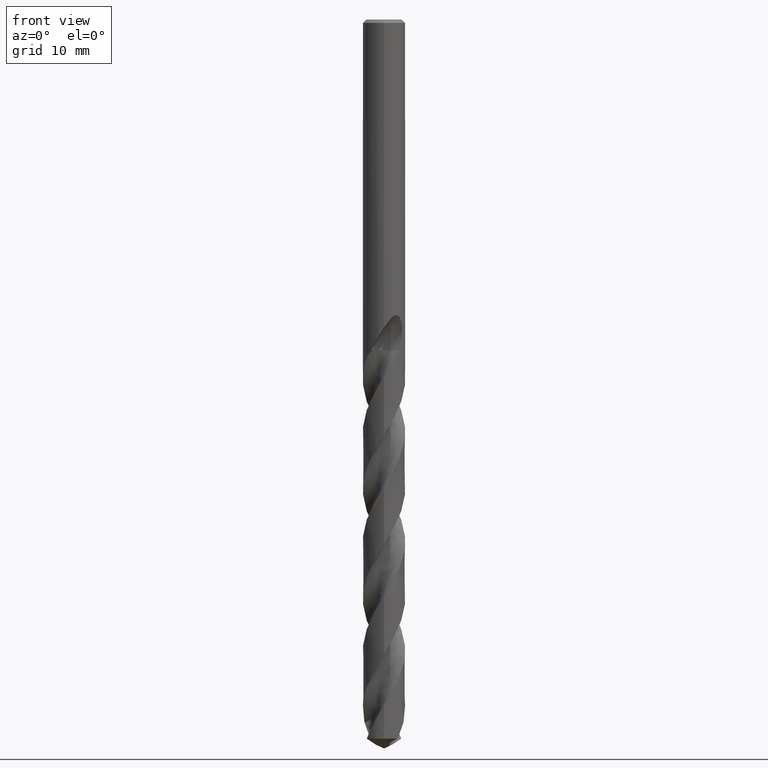
[diagram: clean part render]
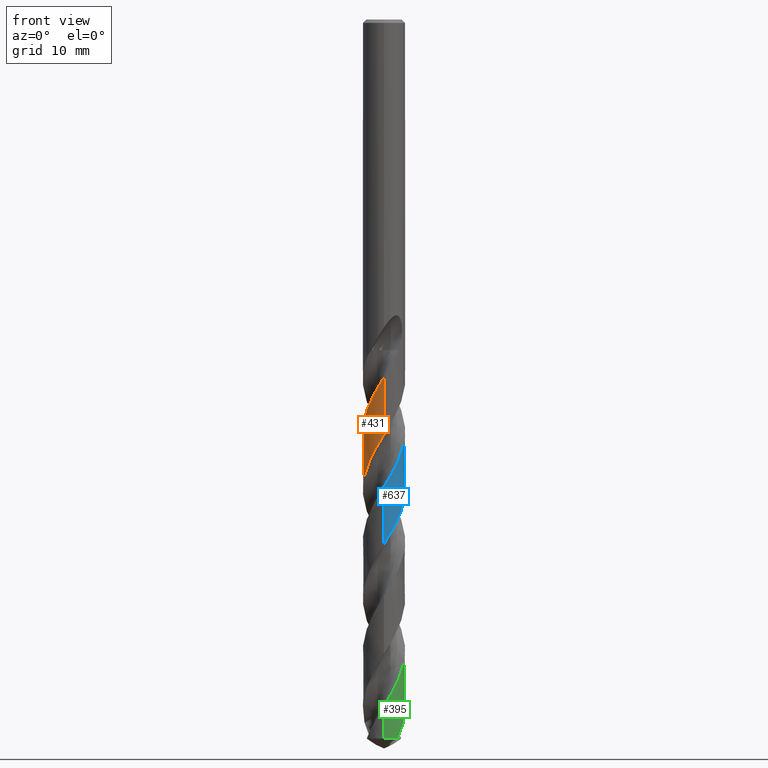
[diagram: same view with three faces highlighted in distinct colors, each labeled with its STEP entity id]
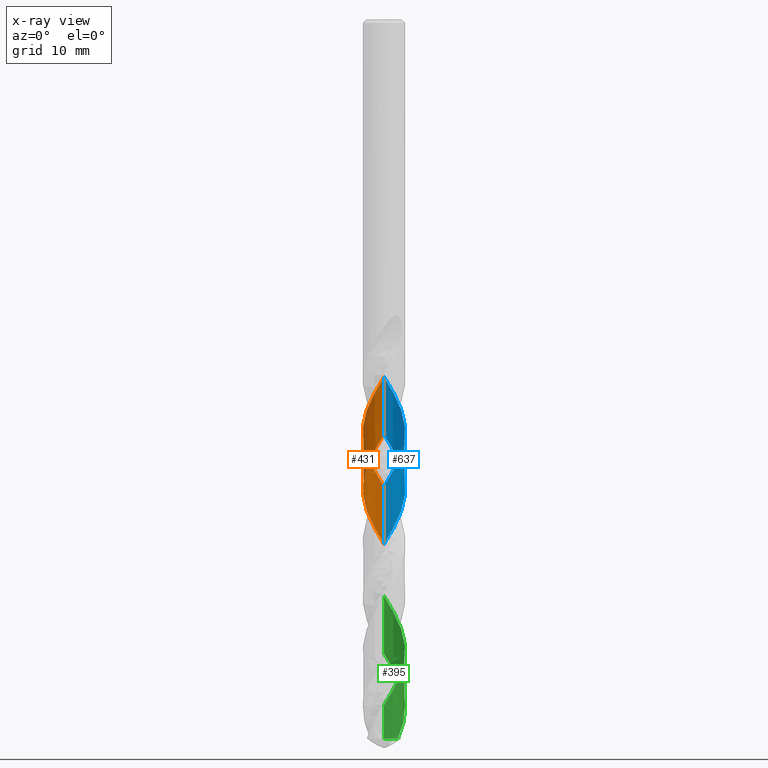
[diagram: x-ray of the same camera — body ghosted, the three highlighted faces saturated]
A machine part, front view with three faces highlighted in distinct colors.
The next image is the same camera in x-ray (body ghosted, the three faces saturated) — at least one of them is partly hidden behind the body in this view.
Their STEP definitions:

[orange] entity #431 — the highlighted conical surface has half-angle 0 deg.
#337=EDGE_CURVE('',#709,#527,#839,.T.);
#431=ADVANCED_FACE('',(#943),#944,.T.);
#479=EDGE_CURVE('',#527,#519,#998,.T.);
#519=VERTEX_POINT('',#1041);
#527=VERTEX_POINT('',#1049);
#621=EDGE_CURVE('',#633,#709,#1152,.T.);
#633=VERTEX_POINT('',#1165);
#709=VERTEX_POINT('',#1247);
#735=EDGE_CURVE('',#519,#633,#1275,.T.);
#839=B_SPLINE_CURVE_WITH_KNOTS('',3,(#2713,#2714,#2715,#2716,#2717,#2718,#2719,#2720,#2721,#2722,#2723,#2724,#2725,#2726,#2727,#2728,#2729,#2730,#2731,#2732,#2733,#2734,#2735,#2736,#2737,#2738,#2739,#2740,#2741,#2742,#2743,#2744,#2745,#2746,#2747,#2748,#2749,#2750,#2751,#2752,#2753,#2754,#2755,#2756,#2757,#2758,#2759,#2760,#2761,#2762,#2763,#2764,#2765,#2766,#2767,#2768,#2769,#2770,#2771,#2772,#2773,#2774,#2775,#2776,#2777,#2778,#2779,#2780,#2781,#2782,#2783,#2784,#2785,#2786,#2787,#2788,#2789,#2790,#2791,#2792,#2793,#2794,#2795,#2796,#2797,#2798,#2799,#2800,#2801,#2802,#2803,#2804,#2805,#2806,#2807,#2808,#2809,#2810,#2811,#2812,#2813,#2814,#2815,#2816,#2817,#2818,#2819,#2820,#2821,#2822,#2823,#2824,#2825,#2826,#2827,#2828,#2829,#2830,#2831,#2832,#2833,#2834,#2835,#2836,#2837,#2838,#2839,#2840,#2841,#2842,#2843,#2844,#2845,#2846,#2847,#2848,#2849,#2850,#2851,#2852,#2853,#2854,#2855,#2856,#2857,#2858,#2859,#2860,#2861,#2862,#2863,#2864),.UNSPECIFIED.,.F.,.F.,(4,2,2,2,2,2,2,2,2,2,2,2,2,2,2,2,2,2,2,2,2,2,2,2,2,2,2,2,2,2,2,2,2,2,2,2,2,2,2,2,2,2,2,2,2,2,2,2,2,2,2,2,2,2,2,2,2,2,2,2,2,2,2,2,2,2,2,2,2,2,2,2,2,2,2,4),(0.0,0.843083054638902,1.66804286657641,2.51310423940939,3.36250952221617,3.57473579094262,4.20621494976828,5.0525712826218,5.8978571349749,6.74385602508176,7.59183024873206,8.39977147456025,9.27828082982898,10.0859241058606,10.9794898650953,11.70412571583,12.1541521877217,12.8041614260335,13.6523683667618,14.4999247276601,15.3475843639569,16.1976753466537,16.9990964033029,17.8544970287512,19.2432046717288,19.3449379990912,20.1974135772461,20.6288419063677,21.4504111602038,22.3012801259191,23.149091867137,24.037501226588,24.9226112893588,25.8135300813571,26.6289010674702,27.4804265663469,28.3291974930779,29.1801095271964,30.0315289585334,30.8657588302019,31.7588635651947,32.5902035515715,33.484200048639,34.3068304630442,35.164152534063,35.9034489644532,36.3361763551521,36.9909870583652,37.8439098675173,38.6961846119663,39.5485741243822,40.403405385222,41.2114476260207,42.0714499378239,43.4738025513434,43.5735670078129,45.2229303149307,45.2884315362778,46.236365421632,46.6698779453753,47.4038655321789,48.1120624154248,49.4758027034848,49.9857161280815,50.8773361897484,52.1588135294673,52.4571576783106,52.8065841090327,53.0051249137027,53.1100647107522,53.1494684978502,53.1879739384339,53.2419326191836,53.3741587339091,53.566967698482,53.7365182293581),.UNSPECIFIED.);
#943=FACE_OUTER_BOUND('',#4662,.T.);
#944=CONICAL_SURFACE('',#4663,2.49995,2.18177545767606E-006);
#998=LINE('',#5174,#5175);
#1041=CARTESIAN_POINT('',(-2.95548719547398E-011,-2.49990692057488,-42.1719922679933));
#1049=CARTESIAN_POINT('',(4.14994299950938E-015,-2.49992177036322,-48.978278534679));
#1152=LINE('',#6170,#6171);
#1165=CARTESIAN_POINT('',(-3.84068124629203E-013,2.49993510164427,-55.0885686660213));
#1247=CARTESIAN_POINT('',(5.39811150002052E-015,2.49994995181934,-61.8950321944106));
#1275=B_SPLINE_CURVE_WITH_KNOTS('',3,(#8434,#8435,#8436,#8437,#8438,#8439,#8440,#8441,#8442,#8443,#8444,#8445,#8446,#8447,#8448,#8449,#8450,#8451,#8452,#8453,#8454,#8455,#8456,#8457,#8458,#8459,#8460,#8461,#8462,#8463,#8464,#8465,#8466,#8467,#8468,#8469,#8470,#8471,#8472,#8473,#8474,#8475,#8476,#8477,#8478,#8479,#8480,#8481,#8482,#8483,#8484,#8485,#8486,#8487,#8488,#8489,#8490,#8491,#8492,#8493,#8494,#8495,#8496,#8497,#8498,#8499,#8500,#8501,#8502,#8503,#8504,#8505,#8506,#8507,#8508,#8509,#8510,#8511,#8512,#8513,#8514,#8515,#8516,#8517,#8518,#8519,#8520,#8521,#8522,#8523,#8524,#8525,#8526,#8527,#8528,#8529,#8530,#8531,#8532,#8533,#8534,#8535,#8536,#8537,#8538,#8539,#8540,#8541,#8542,#8543,#8544,#8545,#8546,#8547,#8548,#8549,#8550,#8551,#8552,#8553,#8554,#8555,#8556,#8557,#8558,#8559,#8560,#8561,#8562,#8563,#8564,#8565,#8566,#8567,#8568,#8569,#8570,#8571,#8572,#8573,#8574,#8575,#8576,#8577,#8578,#8579,#8580,#8581,#8582,#8583,#8584,#8585,#8586,#8587,#8588,#8589,#8590,#8591,#8592,#8593,#8594,#8595,#8596,#8597,#8598,#8599,#8600,#8601,#8602,#8603,#8604,#8605,#8606,#8607,#8608,#8609,#8610,#8611,#8612,#8613,#8614,#8615,#8616,#8617,#8618,#8619),.UNSPECIFIED.,.F.,.F.,(4,2,2,2,2,2,2,2,2,2,2,2,2,2,2,2,2,2,2,2,2,2,2,2,2,2,2,2,2,2,2,2,2,2,2,2,2,2,2,2,2,2,2,2,2,2,2,2,2,2,2,2,2,2,2,2,2,2,2,2,2,2,2,2,2,2,2,2,2,2,2,2,2,2,2,2,2,2,2,2,2,2,2,2,2,2,2,2,2,2,2,2,4),(0.0,0.130197631691934,0.177790375154631,0.20352837875392,0.220477773174273,0.234485518691503,0.245967376914875,0.255309320033064,0.262862451433,0.268940527064288,0.273826369758257,0.277656987587669,0.28040462122601,0.282358492650839,0.283748031980026,0.558711843630576,0.62011222371354,0.66020049941823,0.692524605453398,0.729355090980869,0.792330234612566,0.833643482365751,0.901367118097999,1.15381635228199,1.40619876288596,1.58774940205914,1.67380141968575,1.85338322812626,2.29506270661106,4.13542105061356,5.00461126079501,5.17159259565805,6.53687756468259,6.93574310306155,7.68923974127355,8.12938232876279,8.5744064516874,9.98271598118927,10.3378960322548,11.1530445807223,11.5705488553828,11.9659135057265,13.4464712373786,13.4866936811887,14.69772421416,15.8444731832757,16.714434277566,16.8888541614119,18.1691452072515,19.0060888019089,19.8094675001382,20.6980458993568,21.5468583329051,21.9952297836868,23.406971863391,23.7585636740439,24.5787034695598,25.0165159198198,25.3966326474268,26.1676807432539,26.5856740651357,27.0259636646815,28.4423117199704,28.6178453861175,29.887606128225,30.8312605479075,31.6524604633438,32.0679552541681,33.5129706621341,33.6804597592663,35.0087108347904,35.4210594423622,36.8693705947139,36.9529259546718,38.1601294823307,39.3100676834008,40.1785708203634,40.3520111471677,41.6344169593832,42.094239637959,43.4947797878177,43.8509767470389,44.6579477207934,45.0744736150211,45.4741344429667,46.9419238798095,46.9825987660621,48.1656603916745,49.1883459185273,49.9640468392,50.5485074317741,51.4282284075704,52.3131001026529),.UNSPECIFIED.);
#2713=CARTESIAN_POINT('',(-1.61904416076534,1.9049136477782,-84.8342308546125));
#2714=CARTESIAN_POINT('',(-1.73030245048948,1.81035114924859,-84.5941140361506));
#2715=CARTESIAN_POINT('',(-1.83285812364687,1.70643502484931,-84.3523628425534));
#2716=CARTESIAN_POINT('',(-2.01694541256704,1.48401810570645,-83.8771588573506));
#2717=CARTESIAN_POINT('',(-2.09844005231934,1.36637078175123,-83.6435267278447));
#2718=CARTESIAN_POINT('',(-2.24223578281594,1.11525833942451,-83.1680450574665));
#2719=CARTESIAN_POINT('',(-2.30364667208482,0.982153947810092,-82.926498494044));
#2720=CARTESIAN_POINT('',(-2.40279534109374,0.705836091355642,-82.4440535319063));
#2721=CARTESIAN_POINT('',(-2.44016675337095,0.563215823820068,-82.2035854338965));
#2722=CARTESIAN_POINT('',(-2.47092775821712,0.38188458335885,-81.9013657760394));
#2723=CARTESIAN_POINT('',(-2.47627126519853,0.345535898857718,-81.8409538259136));
#2724=CARTESIAN_POINT('',(-2.4943121719894,0.200743870630057,-81.6006164399236));
#2725=CARTESIAN_POINT('',(-2.50071407449235,0.0915018902334625,-81.4199131088757));
#2726=CARTESIAN_POINT('',(-2.49887374981121,-0.16464990555372,-80.9986717059998));
#2727=CARTESIAN_POINT('',(-2.48491029320295,-0.311008745782048,-80.7588451766232));
#2728=CARTESIAN_POINT('',(-2.43146650675097,-0.59951354861451,-80.2768715720761));
#2729=CARTESIAN_POINT('',(-2.39217949408288,-0.740853995146749,-80.0349574193276));
#2730=CARTESIAN_POINT('',(-2.28929284418535,-1.01516332526188,-79.5530813389774));
#2731=CARTESIAN_POINT('',(-2.22584375494678,-1.14763909978102,-79.3134486132993));
#2732=CARTESIAN_POINT('',(-2.07618475171659,-1.40036000131957,-78.8310691637181));
#2733=CARTESIAN_POINT('',(-1.99036771871385,-1.51983914447561,-78.588533935986));
#2734=CARTESIAN_POINT('',(-1.80336668681012,-1.73705269492233,-78.1169892513679));
#2735=CARTESIAN_POINT('',(-1.70333743422637,-1.83525984627696,-77.8881531586018));
#2736=CARTESIAN_POINT('',(-1.47828803533214,-2.02182395238271,-77.4082574275265));
#2737=CARTESIAN_POINT('',(-1.35259123307695,-2.10795815705749,-77.1572310045832));
#2738=CARTESIAN_POINT('',(-1.0981125261393,-2.25023593837381,-76.6774093570044));
#2739=CARTESIAN_POINT('',(-0.97062539408151,-2.30810908220714,-76.4488177316941));
#2740=CARTESIAN_POINT('',(-0.693020451042249,-2.40698662992373,-75.9651304596905));
#2741=CARTESIAN_POINT('',(-0.542904371539681,-2.44519458044319,-75.7100770532001));
#2742=CARTESIAN_POINT('',(-0.26683020752651,-2.48884768927043,-75.2499859275215));
#2743=CARTESIAN_POINT('',(-0.141778061734029,-2.49910575910554,-75.0448607245617));
#2744=CARTESIAN_POINT('',(0.0615749082536149,-2.50043352911697,-74.7112109707396));
#2745=CARTESIAN_POINT('',(0.139363901202381,-2.49729948474765,-74.583545042677));
#2746=CARTESIAN_POINT('',(0.328600999998196,-2.48082739658658,-74.270796852484));
#2747=CARTESIAN_POINT('',(0.439679271707452,-2.46357560366053,-74.0851852269267));
#2748=CARTESIAN_POINT('',(0.692480264582732,-2.40663092380166,-73.6590514114439));
#2749=CARTESIAN_POINT('',(0.832524417716884,-2.36184897511326,-73.4192066326005));
#2750=CARTESIAN_POINT('',(1.10313463218582,-2.24821777481941,-72.9370961990108));
#2751=CARTESIAN_POINT('',(1.23294784022147,-2.17971739408404,-72.6950548585672));
#2752=CARTESIAN_POINT('',(1.47910617013291,-2.0207852941405,-72.2130964248914));
#2753=CARTESIAN_POINT('',(1.59502062454969,-1.93061581807798,-71.9735120292661));
#2754=CARTESIAN_POINT('',(1.81012492314567,-1.73058784604798,-71.4911062929622));
#2755=CARTESIAN_POINT('',(1.90863487692411,-1.62127069557093,-71.248495559264));
#2756=CARTESIAN_POINT('',(2.08022417426271,-1.39343842230922,-70.7792262313213));
#2757=CARTESIAN_POINT('',(2.15422318487272,-1.27608056994084,-70.5527067255508));
#2758=CARTESIAN_POINT('',(2.28640130922515,-1.02181147127716,-70.0822799818975));
#2759=CARTESIAN_POINT('',(2.34275473876187,-0.884926485191384,-69.8384483404955));
#2760=CARTESIAN_POINT('',(2.45793582158303,-0.515487504847443,-69.2013199327216));
#2761=CARTESIAN_POINT('',(2.49591011258483,-0.278055587927695,-68.8128425207468));
#2762=CARTESIAN_POINT('',(2.499930989591,-0.0217223641545861,-68.3895151217758));
#2763=CARTESIAN_POINT('',(2.50002175396793,-0.00424837775075665,-68.3606285495612));
#2764=CARTESIAN_POINT('',(2.49915019924383,0.159964767496961,-68.0894699416692));
#2765=CARTESIAN_POINT('',(2.48546049502866,0.306629436197261,-67.8486557812975));
#2766=CARTESIAN_POINT('',(2.44536437244894,0.524944829367527,-67.484526824171));
#2767=CARTESIAN_POINT('',(2.4286241101351,0.597613311246589,-67.3623254604227));
#2768=CARTESIAN_POINT('',(2.37070458025325,0.80602850984963,-67.0067764584283));
#2769=CARTESIAN_POINT('',(2.32122246776111,0.939060250652559,-66.7726143906741));
#2770=CARTESIAN_POINT('',(2.19799538430979,1.20007441098044,-66.2980436474902));
#2771=CARTESIAN_POINT('',(2.12371584788076,1.32710549047304,-66.058008703047));
#2772=CARTESIAN_POINT('',(1.95396428366383,1.56628269768317,-65.5761555837299));
#2773=CARTESIAN_POINT('',(1.85903937146143,1.6778392418689,-65.3345800072696));
#2774=CARTESIAN_POINT('',(1.64575197011054,1.88805827091301,-64.8420752481627));
#2775=CARTESIAN_POINT('',(1.52693662358572,1.98538408590421,-64.5916649037517));
#2776=CARTESIAN_POINT('',(1.27335770575677,2.15677208387363,-64.0887836839792));
#2777=CARTESIAN_POINT('',(1.13937866480618,2.23044735107211,-63.8366731064856));
#2778=CARTESIAN_POINT('',(0.858581891928742,2.35291684999655,-63.3330724789955));
#2779=CARTESIAN_POINT('',(0.71237527076837,2.40122792160595,-63.0820490343108));
#2780=CARTESIAN_POINT('',(0.425635870825854,2.4674619134205,-62.5983021714177));
#2781=CARTESIAN_POINT('',(0.286337834313165,2.48747501343491,-62.366114883144));
#2782=CARTESIAN_POINT('',(-0.000591860060096094,2.50425789139857,-61.8935342815508));
#2783=CARTESIAN_POINT('',(-0.14766219961626,2.49990417220757,-61.6535266104694));
#2784=CARTESIAN_POINT('',(-0.438946053354627,2.46546278084147,-61.171647202568));
#2785=CARTESIAN_POINT('',(-0.582375298553907,2.43556400404885,-60.9300158030611));
#2786=CARTESIAN_POINT('',(-0.862780753685874,2.35092432765367,-60.4483074220251));
#2787=CARTESIAN_POINT('',(-0.999205235204347,2.29627003413885,-60.2085586219782));
#2788=CARTESIAN_POINT('',(-1.26108383185074,2.16355151811865,-59.7263341120705));
#2789=CARTESIAN_POINT('',(-1.38578311146573,2.08586312363154,-59.4840767003682));
#2790=CARTESIAN_POINT('',(-1.61774076048055,1.91135297513945,-59.0065741664307));
#2791=CARTESIAN_POINT('',(-1.72493910908412,1.81520989903585,-58.7715906624558));
#2792=CARTESIAN_POINT('',(-1.92867812230151,1.59800504374051,-58.2825898797425));
#2793=CARTESIAN_POINT('',(-2.02328026032296,1.47637024982219,-58.0286466832588));
#2794=CARTESIAN_POINT('',(-2.18317198864898,1.22634914997775,-57.5404355260836));
#2795=CARTESIAN_POINT('',(-2.24980728901631,1.09935754489893,-57.3063910415296));
#2796=CARTESIAN_POINT('',(-2.36483379512379,0.825218356240182,-56.8182431711396));
#2797=CARTESIAN_POINT('',(-2.41110395389335,0.678167063316389,-56.5642015511659));
#2798=CARTESIAN_POINT('',(-2.47344459644849,0.389583822936428,-56.0784893706862));
#2799=CARTESIAN_POINT('',(-2.4915439791248,0.248923616401569,-55.8470069211967));
#2800=CARTESIAN_POINT('',(-2.50397037978552,-0.040125233626511,-55.3719950769796));
#2801=CARTESIAN_POINT('',(-2.49722574289397,-0.187688634145946,-55.1285774002125));
#2802=CARTESIAN_POINT('',(-2.46062245982718,-0.45949462860944,-54.677141770547));
#2803=CARTESIAN_POINT('',(-2.43409213820059,-0.584005096307821,-54.4690523504952));
#2804=CARTESIAN_POINT('',(-2.3771040712038,-0.777554355239642,-54.1379884864387));
#2805=CARTESIAN_POINT('',(-2.35290587832057,-0.847950141189766,-54.0158907032877));
#2806=CARTESIAN_POINT('',(-2.28439675124643,-1.02168277241147,-53.708406912995));
#2807=CARTESIAN_POINT('',(-2.23612661284262,-1.12342390162272,-53.5224593546359));
#2808=CARTESIAN_POINT('',(-2.10939359474048,-1.34967934549152,-53.0959944164245));
#2809=CARTESIAN_POINT('',(-2.02655581526518,-1.47114698188294,-52.8561522401026));
#2810=CARTESIAN_POINT('',(-1.84051269829731,-1.69813925406976,-52.3740458238015));
#2811=CARTESIAN_POINT('',(-1.73785589977916,-1.80304197393802,-52.1320062399833));
#2812=CARTESIAN_POINT('',(-1.51535660147458,-1.99368964012812,-51.6500469919517));
#2813=CARTESIAN_POINT('',(-1.39588866439931,-2.0790956815578,-51.4104603342242));
#2814=CARTESIAN_POINT('',(-1.14284744946424,-2.22826431662257,-50.9280517234065));
#2815=CARTESIAN_POINT('',(-1.00998652183057,-2.29152984263658,-50.6854413016916));
#2816=CARTESIAN_POINT('',(-0.742348439119781,-2.39119227490734,-50.2155613984915));
#2817=CARTESIAN_POINT('',(-0.608400721342672,-2.42874158141669,-49.9884414015396));
#2818=CARTESIAN_POINT('',(-0.326648635945023,-2.48290089428124,-49.517448757492));
#2819=CARTESIAN_POINT('',(-0.179404602769916,-2.4978344479166,-49.27365545625));
#2820=CARTESIAN_POINT('',(0.208534829191451,-2.50278913620691,-48.6348977346239));
#2821=CARTESIAN_POINT('',(0.447917860191187,-2.47113316913466,-48.2448220177735));
#2822=CARTESIAN_POINT('',(0.695181210113231,-2.40137678569141,-47.8205158323327));
#2823=CARTESIAN_POINT('',(0.71153966994465,-2.39658076153987,-47.7923365959638));
#2824=CARTESIAN_POINT('',(0.998217906634834,-2.30932837857024,-47.2975478025832));
#2825=CARTESIAN_POINT('',(1.25240467055248,-2.18191228811725,-46.8407382651516));
#2826=CARTESIAN_POINT('',(1.48893047849104,-2.00818125110026,-46.3559812673173));
#2827=CARTESIAN_POINT('',(1.49790641953692,-2.0014949786094,-46.3374795783907));
#2828=CARTESIAN_POINT('',(1.63634040544424,-1.89691906070151,-46.0509003583003));
#2829=CARTESIAN_POINT('',(1.7562801853737,-1.7865162574068,-45.7847729356497));
#2830=CARTESIAN_POINT('',(1.91452974939334,-1.609256355639,-45.3949614681343));
#2831=CARTESIAN_POINT('',(1.96162912948107,-1.55148919504226,-45.2727826198));
#2832=CARTESIAN_POINT('',(2.08123427460939,-1.39065001153679,-44.9431093075507));
#2833=CARTESIAN_POINT('',(2.14861166535743,-1.28409992328642,-44.7349916814436));
#2834=CARTESIAN_POINT('',(2.26477911540234,-1.06541977658218,-44.3277294455708));
#2835=CARTESIAN_POINT('',(2.31395088964561,-0.953946760260867,-44.1285452549173));
#2836=CARTESIAN_POINT('',(2.43354576332696,-0.61837349209408,-43.5438203722177));
#2837=CARTESIAN_POINT('',(2.48079967475279,-0.3875649772515,-43.1578797863666));
#2838=CARTESIAN_POINT('',(2.50057849672728,-0.0658796611811111,-42.6292237961722));
#2839=CARTESIAN_POINT('',(2.50134721771636,0.0218442688075326,-42.4856403006997));
#2840=CARTESIAN_POINT('',(2.49080941837004,0.262439961879086,-42.0900498253148));
#2841=CARTESIAN_POINT('',(2.47007431088189,0.414292688459246,-41.8370630213766));
#2842=CARTESIAN_POINT('',(2.38611773564585,0.777335652868665,-41.2237364500792));
#2843=CARTESIAN_POINT('',(2.30845707198406,0.984614900919968,-40.8655061828281));
#2844=CARTESIAN_POINT('',(2.17979115165506,1.22502147156245,-40.4210179153849));
#2845=CARTESIAN_POINT('',(2.15414104078729,1.26958021156559,-40.336710163907));
#2846=CARTESIAN_POINT('',(2.09550034651407,1.36455718929331,-40.1497356874433));
#2847=CARTESIAN_POINT('',(2.06263280878416,1.4136531413964,-40.0486529227457));
#2848=CARTESIAN_POINT('',(2.00953650359871,1.48739933921052,-39.8883603029716));
#2849=CARTESIAN_POINT('',(1.99004499290334,1.513359030171,-39.8301181389715));
#2850=CARTESIAN_POINT('',(1.95991721282118,1.55194043683137,-39.7405640691349));
#2851=CARTESIAN_POINT('',(1.95023548680738,1.56416620366195,-39.7114964681011));
#2852=CARTESIAN_POINT('',(1.93026155687748,1.58860685425693,-39.6563213121148));
#2853=CARTESIAN_POINT('',(1.92470807583987,1.59533187506764,-39.6413232635585));
#2854=CARTESIAN_POINT('',(1.91351971437286,1.60873348786511,-39.6117878069343));
#2855=CARTESIAN_POINT('',(1.90789157364629,1.61540529201777,-39.5972529709433));
#2856=CARTESIAN_POINT('',(1.89413115851364,1.63154112689925,-39.5624924148454));
#2857=CARTESIAN_POINT('',(1.88590484459704,1.64104598486182,-39.5423350376752));
#2858=CARTESIAN_POINT('',(1.85681004976999,1.67413885662698,-39.4731925000309));
#2859=CARTESIAN_POINT('',(1.8349649621341,1.69809806134363,-39.4249278718643));
#2860=CARTESIAN_POINT('',(1.77806069004196,1.75795440209318,-39.3080385891196));
#2861=CARTESIAN_POINT('',(1.74173499648867,1.79408056411168,-39.2406336294798));
#2862=CARTESIAN_POINT('',(1.66809829240026,1.86256905595607,-39.1167838797975));
#2863=CARTESIAN_POINT('',(1.63162777297246,1.89467743936224,-39.0603231056724));
#2864=CARTESIAN_POINT('',(1.5930083538373,1.92660957361547,-39.005));
#4662=EDGE_LOOP('',(#8830,#8831,#8832,#8833));
#4663=AXIS2_PLACEMENT_3D('',#8834,#8835,#8836);
#5174=CARTESIAN_POINT('',(3.06283678736897E-016,-2.49995,-61.9171154273063));
#5175=VECTOR('',#8918,1.0);
#6170=CARTESIAN_POINT('',(-3.06007252110753E-016,2.49995,-61.9171154273063));
#6171=VECTOR('',#9087,1.0);
#8434=CARTESIAN_POINT('',(1.73762264421359,-1.79726670554439,-39.005));
#8435=CARTESIAN_POINT('',(1.72221670660203,-1.81216149651107,-39.0427398167185));
#8436=CARTESIAN_POINT('',(1.70656102459511,-1.82691528514,-39.0805299842807));
#8437=CARTESIAN_POINT('',(1.68477385877601,-1.84691666771552,-39.132084126244));
#8438=CARTESIAN_POINT('',(1.67890608432564,-1.85225247355344,-39.1458701177844));
#8439=CARTESIAN_POINT('',(1.66979965999006,-1.86045409262312,-39.1671030968514));
#8440=CARTESIAN_POINT('',(1.6665921931476,-1.86332793147464,-39.1745512616789));
#8441=CARTESIAN_POINT('',(1.66125188771692,-1.86808786798156,-39.1869001818933));
#8442=CARTESIAN_POINT('',(1.65912641324893,-1.86997586772289,-39.1918015904184));
#8443=CARTESIAN_POINT('',(1.65523448034297,-1.87342108093971,-39.2007514112967));
#8444=CARTESIAN_POINT('',(1.65346990474639,-1.87497868454651,-39.2047998382906));
#8445=CARTESIAN_POINT('',(1.65025218076797,-1.87781090441237,-39.212164975987));
#8446=CARTESIAN_POINT('',(1.64880034837366,-1.87908581770011,-39.2154817723948));
#8447=CARTESIAN_POINT('',(1.64616271844481,-1.88139661034725,-39.2214959993082));
#8448=CARTESIAN_POINT('',(1.64497782184645,-1.88243270838049,-39.2241935325903));
#8449=CARTESIAN_POINT('',(1.64283190379387,-1.88430556600924,-39.2290712419937));
#8450=CARTESIAN_POINT('',(1.64187148753852,-1.88514248144522,-39.2312515116784));
#8451=CARTESIAN_POINT('',(1.64013624770314,-1.88665225103565,-39.2351857055944));
#8452=CARTESIAN_POINT('',(1.63936182347595,-1.88732521304038,-39.2369397048174));
#8453=CARTESIAN_POINT('',(1.63796360571177,-1.88853873039322,-39.2401032792832));
#8454=CARTESIAN_POINT('',(1.63734007017493,-1.88907935794587,-39.2415129095426));
#8455=CARTESIAN_POINT('',(1.63622685243884,-1.89004359162006,-39.2440274811753));
#8456=CARTESIAN_POINT('',(1.63573735022829,-1.89046725027963,-39.2451324661601));
#8457=CARTESIAN_POINT('',(1.63489625424158,-1.891194637869,-39.2470298910802));
#8458=CARTESIAN_POINT('',(1.63454479849379,-1.8914984089193,-39.2478223687147));
#8459=CARTESIAN_POINT('',(1.63394317152742,-1.89201811553894,-39.2491783095331));
#8460=CARTESIAN_POINT('',(1.6336930721942,-1.89223407362107,-39.2497417936993));
#8461=CARTESIAN_POINT('',(1.63326498410932,-1.89260357490171,-39.2507059733115));
#8462=CARTESIAN_POINT('',(1.63308703165996,-1.89275712955,-39.2511066795625));
#8463=CARTESIAN_POINT('',(1.59768827467727,-1.92329390334449,-39.3307973431245));
#8464=CARTESIAN_POINT('',(1.56173305940736,-1.95263587295688,-39.4079897389707));
#8465=CARTESIAN_POINT('',(1.51529937823476,-1.98833790221133,-39.5035335497088));
#8466=CARTESIAN_POINT('',(1.50676261699394,-1.99481519628202,-39.5209409170906));
#8467=CARTESIAN_POINT('',(1.49253845753209,-2.00546359211547,-39.5497064849976));
#8468=CARTESIAN_POINT('',(1.48689483832142,-2.00965156674779,-39.5610584803544));
#8469=CARTESIAN_POINT('',(1.47665217057268,-2.01718539954166,-39.5815589911225));
#8470=CARTESIAN_POINT('',(1.47206439422175,-2.02053587318609,-39.5907046804538));
#8471=CARTESIAN_POINT('',(1.46221438134983,-2.02767792271192,-39.6102676400649));
#8472=CARTESIAN_POINT('',(1.45694946715705,-2.03146429122998,-39.6206800899933));
#8473=CARTESIAN_POINT('',(1.442628801273,-2.04167882385011,-39.6488936967641));
#8474=CARTESIAN_POINT('',(1.43354321913018,-2.04806853251804,-39.6666768180992));
#8475=CARTESIAN_POINT('',(1.41841371424754,-2.05855855620309,-39.6961336551434));
#8476=CARTESIAN_POINT('',(1.41240151232439,-2.06268827216241,-39.707799013712));
#8477=CARTESIAN_POINT('',(1.39648492128253,-2.07351896923282,-39.7385934416108));
#8478=CARTESIAN_POINT('',(1.38645572626539,-2.08023988151913,-39.7579183246704));
#8479=CARTESIAN_POINT('',(1.33825286274896,-2.11202776867614,-39.850714132875));
#8480=CARTESIAN_POINT('',(1.29978397545996,-2.13590606280694,-39.9242667018336));
#8481=CARTESIAN_POINT('',(1.22212042341784,-2.18127377826482,-40.0713014549993));
#8482=CARTESIAN_POINT('',(1.18278949815126,-2.20284394519436,-40.1450416463482));
#8483=CARTESIAN_POINT('',(1.11440699690886,-2.23800040658369,-40.2717269713334));
#8484=CARTESIAN_POINT('',(1.08552744282208,-2.25214960499147,-40.324777766154));
#8485=CARTESIAN_POINT('',(1.0425864608196,-2.27217096786104,-40.4029347680828));
#8486=CARTESIAN_POINT('',(1.02871718540807,-2.27848388635326,-40.4280691486789));
#8487=CARTESIAN_POINT('',(0.985721204727634,-2.29758171853032,-40.505642046939));
#8488=CARTESIAN_POINT('',(0.956390312539644,-2.30994541040799,-40.5580870825097));
#8489=CARTESIAN_POINT('',(0.85411863468997,-2.3507720889934,-40.7395141183298));
#8490=CARTESIAN_POINT('',(0.780038376814157,-2.37638508301876,-40.8683905498814));
#8491=CARTESIAN_POINT('',(0.391432546729204,-2.4905832223596,-41.5344808162803));
#8492=CARTESIAN_POINT('',(0.0630625212742105,-2.52034468995881,-42.0661903146631));
#8493=CARTESIAN_POINT('',(-0.414954081738593,-2.47004641240514,-42.8573035585666));
#8494=CARTESIAN_POINT('',(-0.566565388169622,-2.43975026512842,-43.1103106485351));
#8495=CARTESIAN_POINT('',(-0.742925455909151,-2.38715091822364,-43.4126874771301));
#8496=CARTESIAN_POINT('',(-0.771184479173955,-2.37817201265883,-43.46140214519));
#8497=CARTESIAN_POINT('',(-1.02895446892957,-2.29119292955219,-43.9086842394604));
#8498=CARTESIAN_POINT('',(-1.246222100678,-2.18066355254979,-44.305789285099));
#8499=CARTESIAN_POINT('',(-1.50199192559868,-1.99965067337997,-44.8207858671826));
#8500=CARTESIAN_POINT('',(-1.55802988859462,-1.95630258915173,-44.9371220914516));
#8501=CARTESIAN_POINT('',(-1.71435643426653,-1.8244005612891,-45.2736474725385));
#8502=CARTESIAN_POINT('',(-1.80950686131011,-1.73007333497068,-45.493551775309));
#8503=CARTESIAN_POINT('',(-1.94757001603607,-1.56928413086855,-45.8421167710365));
#8504=CARTESIAN_POINT('',(-1.9956850681592,-1.50762424894824,-45.9705424846292));
#8505=CARTESIAN_POINT('',(-2.08650185248118,-1.37925304789749,-46.2289733195392));
#8506=CARTESIAN_POINT('',(-2.12905731640779,-1.31260746874783,-46.3587335521144));
#8507=CARTESIAN_POINT('',(-2.2928123543485,-1.0271901527444,-46.8999949869354));
#8508=CARTESIAN_POINT('',(-2.38406127359273,-0.792751671649316,-47.3094293713288));
#8509=CARTESIAN_POINT('',(-2.45282570176315,-0.487057406828887,-47.8243804051907));
#8510=CARTESIAN_POINT('',(-2.46433288196527,-0.425014239942788,-47.928047686551));
#8511=CARTESIAN_POINT('',(-2.4944724542108,-0.219435356481297,-48.2699172348265));
#8512=CARTESIAN_POINT('',(-2.50299728897073,-0.0746534747018654,-48.507793130346));
#8513=CARTESIAN_POINT('',(-2.49686002576894,0.144212957490745,-48.8678256379224));
#8514=CARTESIAN_POINT('',(-2.49148332503486,0.21822900258531,-48.9896765224248));
#8515=CARTESIAN_POINT('',(-2.47461731200151,0.361685688382168,-49.2270622464661));
#8516=CARTESIAN_POINT('',(-2.46348014434329,0.43105412794689,-49.3424160396705));
#8517=CARTESIAN_POINT('',(-2.39687484633294,0.757452923186245,-49.8904529944138));
#8518=CARTESIAN_POINT('',(-2.30396457229818,1.00528405973081,-50.3205361890221));
#8519=CARTESIAN_POINT('',(-2.17055308603022,1.24031396752464,-50.7647313014915));
#8520=CARTESIAN_POINT('',(-2.16699836542082,1.24651418986113,-50.7764794317106));
#8521=CARTESIAN_POINT('',(-2.05560329015403,1.43889572449611,-51.141950209957));
#8522=CARTESIAN_POINT('',(-1.92416368597859,1.61045055144872,-51.495028710087));
#8523=CARTESIAN_POINT('',(-1.62865684837542,1.90752571817185,-52.1838015390894));
#8524=CARTESIAN_POINT('',(-1.46784757861972,2.03384979617745,-52.5176359528675));
#8525=CARTESIAN_POINT('',(-1.16137488336555,2.21917361969995,-53.1069410608572));
#8526=CARTESIAN_POINT('',(-1.02199000828033,2.28672308679069,-53.3604313999156));
#8527=CARTESIAN_POINT('',(-0.84816495856232,2.35185825992236,-53.6655025816073));
#8528=CARTESIAN_POINT('',(-0.818942506058692,2.3621926687481,-53.716434109067));
#8529=CARTESIAN_POINT('',(-0.573692454286333,2.44382752921672,-54.1414779515867));
#8530=CARTESIAN_POINT('',(-0.348955845156309,2.48590158630499,-54.5145398194744));
#8531=CARTESIAN_POINT('',(0.0270049701198556,2.5042137038711,-55.133172526691));
#8532=CARTESIAN_POINT('',(0.175900721781753,2.4981661438644,-55.3772363046867));
#8533=CARTESIAN_POINT('',(0.464790630019287,2.46049045209599,-55.8567056201322));
#8534=CARTESIAN_POINT('',(0.604508127207441,2.42994963417364,-56.0910908322707));
#8535=CARTESIAN_POINT('',(0.891790187916859,2.34080265008148,-56.5854768256165));
#8536=CARTESIAN_POINT('',(1.03781802207958,2.27981064526435,-56.8445192605677));
#8537=CARTESIAN_POINT('',(1.31005776684883,2.13452043822235,-57.3523705681376));
#8538=CARTESIAN_POINT('',(1.43643422912037,2.05161726970483,-57.5999366736939));
#8539=CARTESIAN_POINT('',(1.61704404771828,1.908200772611,-57.9789697913505));
#8540=CARTESIAN_POINT('',(1.67704256855403,1.85568966506796,-58.1098135324369));
#8541=CARTESIAN_POINT('',(1.91507992162554,1.62637934374597,-58.6535023700562));
#8542=CARTESIAN_POINT('',(2.06860607526792,1.42604673790405,-59.0642372693762));
#8543=CARTESIAN_POINT('',(2.21989258043884,1.15139495551216,-59.5795583397742));
#8544=CARTESIAN_POINT('',(2.24797897965403,1.09554497042027,-59.6822649708418));
#8545=CARTESIAN_POINT('',(2.33448401091334,0.906172746965637,-60.0248192304892));
#8546=CARTESIAN_POINT('',(2.38334417837827,0.768544167049374,-60.2643350747688));
#8547=CARTESIAN_POINT('',(2.4394697607514,0.552069812022624,-60.6320494054249));
#8548=CARTESIAN_POINT('',(2.45547806654354,0.475843779199551,-60.7599187190838));
#8549=CARTESIAN_POINT('',(2.47869376922195,0.332245516732774,-60.9989730828821));
#8550=CARTESIAN_POINT('',(2.48676712163694,0.265130067113753,-61.1099826133352));
#8551=CARTESIAN_POINT('',(2.50295379315463,0.0611890432458317,-61.4465581442003));
#8552=CARTESIAN_POINT('',(2.50254783727316,-0.0760975509355209,-61.6718326116566));
#8553=CARTESIAN_POINT('',(2.48456595904931,-0.286714062247579,-62.0194656868122));
#8554=CARTESIAN_POINT('',(2.47494514790809,-0.360452726773932,-62.1415815466732));
#8555=CARTESIAN_POINT('',(2.44846419160717,-0.510794356497426,-62.392466046371));
#8556=CARTESIAN_POINT('',(2.43126888609692,-0.5872084209836,-62.521006894772));
#8557=CARTESIAN_POINT('',(2.34378585840931,-0.905438229859661,-63.0638943904809));
#8558=CARTESIAN_POINT('',(2.24071781460994,-1.13685271001943,-63.4760984893335));
#8559=CARTESIAN_POINT('',(2.08791099973608,-1.37527263652291,-63.9414963220553));
#8560=CARTESIAN_POINT('',(2.07057443762275,-1.40123825269819,-63.9927963335258));
#8561=CARTESIAN_POINT('',(1.92387226168762,-1.6122918312783,-64.4154455151227));
#8562=CARTESIAN_POINT('',(1.77039981297749,-1.77946931158946,-64.7857985956036));
#8563=CARTESIAN_POINT('',(1.46733549876896,-2.03098686246946,-65.4330911141026));
#8564=CARTESIAN_POINT('',(1.32771027914844,-2.12488071194854,-65.7084336920051));
#8565=CARTESIAN_POINT('',(1.05110823976007,-2.27294523278201,-66.2247321612019));
#8566=CARTESIAN_POINT('',(0.916555074963194,-2.33046755069035,-66.4644280308115));
#8567=CARTESIAN_POINT('',(0.707414663814484,-2.39892355644006,-66.8260802065756));
#8568=CARTESIAN_POINT('',(0.636191868321249,-2.41878568977234,-66.9474537002626));
#8569=CARTESIAN_POINT('',(0.313871505795749,-2.49345713728035,-67.4917215581982));
#8570=CARTESIAN_POINT('',(0.0559555701218009,-2.51253193179825,-67.9122698264701));
#8571=CARTESIAN_POINT('',(-0.230090474049039,-2.48953156010603,-68.3839003387893));
#8572=CARTESIAN_POINT('',(-0.259747627385579,-2.48661215041334,-68.4328772521698));
#8573=CARTESIAN_POINT('',(-0.524039116510788,-2.45581743613788,-68.8704749844882));
#8574=CARTESIAN_POINT('',(-0.753787608708955,-2.39531614341811,-69.2577490573857));
#8575=CARTESIAN_POINT('',(-1.03927316358877,-2.27489226859338,-69.766952240898));
#8576=CARTESIAN_POINT('',(-1.105588436384,-2.24341087420524,-69.8874546553969));
#8577=CARTESIAN_POINT('',(-1.39808258121933,-2.0884428371007,-70.4319729770323));
#8578=CARTESIAN_POINT('',(-1.60585443600939,-1.93327794485146,-70.8536139094994));
#8579=CARTESIAN_POINT('',(-1.79665837356913,-1.73841662099282,-71.3018286944971));
#8580=CARTESIAN_POINT('',(-1.806969169611,-1.72769681941928,-71.3262723399918));
#8581=CARTESIAN_POINT('',(-1.96476889494222,-1.56067977692155,-71.7040100544973));
#8582=CARTESIAN_POINT('',(-2.09163782320909,-1.38604458212879,-72.0566583464519));
#8583=CARTESIAN_POINT('',(-2.29266225644196,-1.01759313768856,-72.7465770315811));
#8584=CARTESIAN_POINT('',(-2.36824520196094,-0.826531470386686,-73.0819775389277));
#8585=CARTESIAN_POINT('',(-2.45853699579652,-0.478911544604253,-73.672929395726));
#8586=CARTESIAN_POINT('',(-2.48345117944621,-0.325995803755994,-73.9264821029627));
#8587=CARTESIAN_POINT('',(-2.49619537400605,-0.140879400776419,-74.2314305443617));
#8588=CARTESIAN_POINT('',(-2.49774502715785,-0.110036718990689,-74.2821744590137));
#8589=CARTESIAN_POINT('',(-2.50595432241123,0.149015588977321,-74.708375993145));
#8590=CARTESIAN_POINT('',(-2.48189028744175,0.377221687822196,-75.0827573818879));
#8591=CARTESIAN_POINT('',(-2.40753272958682,0.678523564709723,-75.5928016165654));
#8592=CARTESIAN_POINT('',(-2.38401872864657,0.757005231945601,-75.7272334419523));
#8593=CARTESIAN_POINT('',(-2.27350594938451,1.06922781795036,-76.2720234422488));
#8594=CARTESIAN_POINT('',(-2.15556214620688,1.29063053809352,-76.680323220964));
#8595=CARTESIAN_POINT('',(-1.9689033405407,1.54187020558961,-77.194691553241));
#8596=CARTESIAN_POINT('',(-1.92914774330758,1.59132898306147,-77.2989331435565));
#8597=CARTESIAN_POINT('',(-1.79337196716673,1.74767770416976,-77.6396320487338));
#8598=CARTESIAN_POINT('',(-1.68997388910827,1.84785583660583,-77.8757696663752));
#8599=CARTESIAN_POINT('',(-1.52098827708027,1.98545375382011,-78.2341000061357));
#8600=CARTESIAN_POINT('',(-1.46139083560941,2.02972279342811,-78.3559964139301));
#8601=CARTESIAN_POINT('',(-1.34089737142117,2.11116024884567,-78.5949982485233));
#8602=CARTESIAN_POINT('',(-1.28024337054756,2.14848201040419,-78.711916674286));
#8603=CARTESIAN_POINT('',(-0.989850328296239,2.31050846171311,-79.2589573412748));
#8604=CARTESIAN_POINT('',(-0.742928009755047,2.40133587891679,-79.6865503569095));
#8605=CARTESIAN_POINT('',(-0.479258855027438,2.45363243992912,-80.1283469856413));
#8606=CARTESIAN_POINT('',(-0.47214396176952,2.45501148851007,-80.1402585285471));
#8607=CARTESIAN_POINT('',(-0.257884383321668,2.49557454007906,-80.4987255787633));
#8608=CARTESIAN_POINT('',(-0.046558778793296,2.50843639922293,-80.8447344743241));
#8609=CARTESIAN_POINT('',(0.345742673208156,2.48267030340087,-81.490977698953));
#8610=CARTESIAN_POINT('',(0.525700775519718,2.45087178072892,-81.7895612282239));
#8611=CARTESIAN_POINT('',(0.833124948074687,2.36113463721112,-82.316646598516));
#8612=CARTESIAN_POINT('',(0.962351364761756,2.31148685166901,-82.5435906723143));
#8613=CARTESIAN_POINT('',(1.18068039285936,2.20608833422603,-82.9421012265571));
#8614=CARTESIAN_POINT('',(1.27154488376819,2.15499326711574,-83.113060283767));
#8615=CARTESIAN_POINT('',(1.49048551989736,2.01320647504705,-83.54215790713));
#8616=CARTESIAN_POINT('',(1.61378375678757,1.91580023120019,-83.7995503167885));
#8617=CARTESIAN_POINT('',(1.84123677009895,1.69844936358085,-84.3165646011871));
#8618=CARTESIAN_POINT('',(1.94461385109078,1.57901363480882,-84.5747545377035));
#8619=CARTESIAN_POINT('',(2.03601740058076,1.45073538060268,-84.8342308546125));
#8830=ORIENTED_EDGE('',*,*,#621,.T.);
#8831=ORIENTED_EDGE('',*,*,#337,.T.);
#8832=ORIENTED_EDGE('',*,*,#479,.T.);
#8833=ORIENTED_EDGE('',*,*,#735,.T.);
#8834=CARTESIAN_POINT('',(0.0,0.0,-61.9171154273063));
#8835=DIRECTION('',(0.0,-0.0,-1.0));
#8836=DIRECTION('',(0.0,1.0,0.0));
#8918=DIRECTION('',(-2.67181608808171E-022,2.18177545767433E-006,0.99999999999762));
#9087=DIRECTION('',(-2.67181608808171E-022,2.18177545767433E-006,-0.99999999999762));

[blue] entity #637 — the highlighted conical surface has half-angle 0 deg.
#273=EDGE_CURVE('',#729,#569,#772,.T.);
#309=EDGE_CURVE('',#729,#313,#808,.T.);
#313=VERTEX_POINT('',#812);
#333=EDGE_CURVE('',#635,#313,#835,.T.);
#335=EDGE_CURVE('',#635,#569,#837,.T.);
#569=VERTEX_POINT('',#1093);
#635=VERTEX_POINT('',#1167);
#637=ADVANCED_FACE('',(#1169),#1170,.T.);
#729=VERTEX_POINT('',#1268);
#772=B_SPLINE_CURVE_WITH_KNOTS('',3,(#1308,#1309,#1310,#1311,#1312,#1313,#1314,#1315,#1316,#1317,#1318,#1319,#1320,#1321,#1322,#1323,#1324,#1325,#1326,#1327,#1328,#1329,#1330,#1331,#1332,#1333,#1334,#1335,#1336,#1337,#1338,#1339,#1340,#1341,#1342,#1343,#1344,#1345,#1346,#1347,#1348,#1349,#1350,#1351,#1352,#1353,#1354,#1355,#1356,#1357,#1358,#1359,#1360,#1361,#1362,#1363,#1364,#1365,#1366,#1367,#1368,#1369,#1370,#1371,#1372,#1373,#1374,#1375,#1376,#1377,#1378,#1379,#1380,#1381,#1382,#1383,#1384,#1385,#1386,#1387,#1388,#1389,#1390,#1391,#1392,#1393,#1394,#1395,#1396,#1397,#1398,#1399,#1400,#1401,#1402,#1403,#1404,#1405,#1406,#1407,#1408,#1409,#1410,#1411,#1412,#1413,#1414,#1415,#1416,#1417,#1418,#1419,#1420,#1421,#1422,#1423,#1424,#1425,#1426,#1427,#1428,#1429,#1430,#1431,#1432,#1433,#1434,#1435,#1436,#1437,#1438,#1439,#1440,#1441,#1442,#1443,#1444,#1445,#1446,#1447,#1448,#1449,#1450,#1451,#1452,#1453,#1454,#1455,#1456,#1457,#1458,#1459,#1460,#1461,#1462,#1463,#1464,#1465,#1466,#1467,#1468,#1469,#1470,#1471,#1472,#1473,#1474,#1475,#1476,#1477,#1478,#1479,#1480,#1481,#1482,#1483,#1484,#1485,#1486,#1487,#1488,#1489),.UNSPECIFIED.,.F.,.F.,(4,2,2,2,2,2,2,2,2,2,2,2,2,2,2,2,2,2,2,2,2,2,2,2,2,2,2,2,2,2,2,2,2,2,2,2,2,2,2,2,2,2,2,2,2,2,2,2,2,2,2,2,2,2,2,2,2,2,2,2,2,2,2,2,2,2,2,2,2,2,2,2,2,2,2,2,2,2,2,2,2,2,2,2,2,2,2,2,2,2,4),(0.0,0.130197631597293,0.177790375418525,0.203528378654914,0.220477773872273,0.234485518982447,0.245967376818644,0.255309320129475,0.262862450857812,0.268940526818085,0.273826370375434,0.277656988226119,0.28040462139779,0.282358492877119,0.283748032503972,0.558711848054427,0.620112229035758,0.66020050533253,0.692524611861151,0.729355097996615,0.792330242652871,0.833643491150822,0.90136712810871,1.15381638451864,1.40619879144719,1.58774943225116,1.67380145157983,1.85338326381108,2.29506274989266,4.13542113649811,4.96334490265507,5.13842884308801,6.44867895445249,6.90062768348101,8.31110242535678,8.66154688165764,9.47830686493295,9.91669056713091,10.3010288166517,11.0687177591685,11.487140497879,11.9325918875694,13.3467270692174,13.5235617743511,14.7891882667677,15.6595893505036,16.4757748797086,17.4184916380108,18.2403896256352,18.6566947326735,20.0998663479402,20.268239373517,21.5913512422743,22.009969477056,23.451942533556,23.6204932312231,24.9415752328202,25.3615535010622,26.8008522597422,26.9698694260146,28.2850005759543,28.7098669672697,30.1405153868371,30.3115955703709,31.6115076259884,32.0517969428733,33.46757652367,33.6426916309841,34.9139361878587,35.7635147679752,36.5774703216238,37.5276410399712,38.3879143149921,38.7797382426625,39.5339938987102,39.9728243202163,40.416947235172,41.8283479136796,42.004411793605,43.2686182732748,44.2203228609047,45.0403307403411,45.4528708047033,46.9002222196363,46.9837916618276,48.1840259256829,49.1956678615136,49.9663908452199,50.5464318562699,51.4202888370663,52.2992951524614),.UNSPECIFIED.);
#808=LINE('',#2477,#2478);
#812=CARTESIAN_POINT('',(-8.36869670024079E-015,2.49992177036322,-48.978278534679));
#835=B_SPLINE_CURVE_WITH_KNOTS('',3,(#2555,#2556,#2557,#2558,#2559,#2560,#2561,#2562,#2563,#2564,#2565,#2566,#2567,#2568,#2569,#2570,#2571,#2572,#2573,#2574,#2575,#2576,#2577,#2578,#2579,#2580,#2581,#2582,#2583,#2584,#2585,#2586,#2587,#2588,#2589,#2590,#2591,#2592,#2593,#2594,#2595,#2596,#2597,#2598,#2599,#2600,#2601,#2602,#2603,#2604,#2605,#2606,#2607,#2608,#2609,#2610,#2611,#2612,#2613,#2614,#2615,#2616,#2617,#2618,#2619,#2620,#2621,#2622,#2623,#2624,#2625,#2626,#2627,#2628,#2629,#2630,#2631,#2632,#2633,#2634,#2635,#2636,#2637,#2638,#2639,#2640,#2641,#2642,#2643,#2644,#2645,#2646,#2647,#2648,#2649,#2650,#2651,#2652,#2653,#2654,#2655,#2656,#2657,#2658,#2659,#2660,#2661,#2662,#2663,#2664,#2665,#2666,#2667,#2668,#2669,#2670,#2671,#2672,#2673,#2674,#2675,#2676,#2677,#2678,#2679,#2680,#2681,#2682,#2683,#2684,#2685,#2686,#2687,#2688,#2689,#2690,#2691,#2692,#2693,#2694,#2695,#2696,#2697,#2698,#2699,#2700,#2701,#2702,#2703,#2704,#2705,#2706),.UNSPECIFIED.,.F.,.F.,(4,2,2,2,2,2,2,2,2,2,2,2,2,2,2,2,2,2,2,2,2,2,2,2,2,2,2,2,2,2,2,2,2,2,2,2,2,2,2,2,2,2,2,2,2,2,2,2,2,2,2,2,2,2,2,2,2,2,2,2,2,2,2,2,2,2,2,2,2,2,2,2,2,2,2,4),(0.0,0.843083036860588,1.66804282445784,2.51310420094247,3.36250948353427,3.57473575263601,4.20621494279439,5.05257127614349,5.89785712989971,6.74385601963546,7.5918302444258,8.39977143285258,9.25254181030798,10.6686810287159,10.7272746588148,11.575739021556,12.0032047005457,12.8123644906255,13.6553569071975,14.4955106262557,15.3378687253484,16.1806478066286,17.0056956403603,17.8521640919949,18.6591214785344,19.5098573303961,20.860202957894,21.0456268163275,22.6323398870029,22.7119034527559,23.6628279853309,24.1115032277236,24.7998938984736,25.6840532398659,26.4218651969014,27.1475165215694,27.576667590082,28.2372125115376,29.0830022235292,29.9283103887265,30.7721237465979,31.6200638698542,32.4168024920405,33.2700916043716,34.6445708681989,34.8475123917744,35.8446680852979,36.6982869442173,38.0325926262055,38.2387508842362,39.0559557685727,39.486589187036,40.3055398471277,41.1548327724152,42.001099703417,42.8865140762626,43.7701736690633,44.6594901591196,45.4755241083576,46.3641190384269,47.2069840287452,47.8579505574661,49.2243268577386,49.7335638821883,50.6245422306346,51.8853836984474,52.205447066137,52.5524571176508,52.7472785827703,52.8413427042817,52.8776550400333,52.9128715006063,52.9617799805844,53.0794527068834,53.2493143121959,53.4170217836426),.UNSPECIFIED.);
#837=LINE('',#2709,#2710);
#1093=CARTESIAN_POINT('',(-3.39961717213199E-015,-2.49993510164426,-55.0885686660225));
#1167=CARTESIAN_POINT('',(2.61323161921781E-014,-2.49994995181934,-61.8950321944105));
#1169=FACE_OUTER_BOUND('',#6376,.T.);
#1170=CONICAL_SURFACE('',#6377,2.49995,2.18177545767606E-006);
#1268=CARTESIAN_POINT('',(2.95637538327296E-011,2.49990692057488,-42.1719922679933));
#1308=CARTESIAN_POINT('',(-1.73762264421359,1.79726670554439,-39.005));
#1309=CARTESIAN_POINT('',(-1.72221670661323,1.81216149650025,-39.042739816691));
#1310=CARTESIAN_POINT('',(-1.70656102461707,1.82691528511933,-39.0805299842278));
#1311=CARTESIAN_POINT('',(-1.68477385876549,1.84691666772539,-39.1320841262693));
#1312=CARTESIAN_POINT('',(-1.6789060842834,1.85225247359187,-39.1458701178836));
#1313=CARTESIAN_POINT('',(-1.6697996599733,1.86045409263797,-39.16710309689));
#1314=CARTESIAN_POINT('',(-1.66659219316597,1.8633279314581,-39.1745512616361));
#1315=CARTESIAN_POINT('',(-1.66125188766608,1.86808786802699,-39.1869001820111));
#1316=CARTESIAN_POINT('',(-1.65912641310457,1.86997586785116,-39.1918015907514));
#1317=CARTESIAN_POINT('',(-1.65523448015805,1.87342108110298,-39.200751411721));
#1318=CARTESIAN_POINT('',(-1.65346990458892,1.87497868468534,-39.2047998386516));
#1319=CARTESIAN_POINT('',(-1.65025218066674,1.8778109045013,-39.2121649762184));
#1320=CARTESIAN_POINT('',(-1.6488003483175,1.87908581774932,-39.215481772523));
#1321=CARTESIAN_POINT('',(-1.64616271840737,1.88139661038003,-39.2214959993936));
#1322=CARTESIAN_POINT('',(-1.6449778217933,1.88243270842696,-39.2241935327113));
#1323=CARTESIAN_POINT('',(-1.64283190381679,1.88430556598918,-39.2290712419415));
#1324=CARTESIAN_POINT('',(-1.64187148763677,1.88514248135961,-39.2312515114553));
#1325=CARTESIAN_POINT('',(-1.64013624782503,1.88665225092974,-39.2351857053183));
#1326=CARTESIAN_POINT('',(-1.63936182354781,1.887325212978,-39.2369397046548));
#1327=CARTESIAN_POINT('',(-1.6379636056153,1.88853873047696,-39.2401032795015));
#1328=CARTESIAN_POINT('',(-1.63734007001041,1.88907935808849,-39.2415129099145));
#1329=CARTESIAN_POINT('',(-1.63622685223591,1.89004359179572,-39.2440274816334));
#1330=CARTESIAN_POINT('',(-1.63573735003914,1.8904672504433,-39.2451324665869));
#1331=CARTESIAN_POINT('',(-1.63489625413791,1.89119463795862,-39.2470298913139));
#1332=CARTESIAN_POINT('',(-1.63454479837524,1.89149840902178,-39.247822368982));
#1333=CARTESIAN_POINT('',(-1.63394317133336,1.89201811570657,-39.2491783099705));
#1334=CARTESIAN_POINT('',(-1.63369307208016,1.8922340737195,-39.2497417939562));
#1335=CARTESIAN_POINT('',(-1.63326498409915,1.89260357491047,-39.2507059733344));
#1336=CARTESIAN_POINT('',(-1.63308703161424,1.89275712958944,-39.2511066796655));
#1337=CARTESIAN_POINT('',(-1.59768827460311,1.92329390340581,-39.3307973432858));
#1338=CARTESIAN_POINT('',(-1.56173305937483,1.95263587298223,-39.4079897390383));
#1339=CARTESIAN_POINT('',(-1.51529937822348,1.9883379022199,-39.5035335497319));
#1340=CARTESIAN_POINT('',(-1.50676261698311,1.99481519629019,-39.5209409171126));
#1341=CARTESIAN_POINT('',(-1.49253845752841,2.00546359211822,-39.5497064850051));
#1342=CARTESIAN_POINT('',(-1.48689483831781,2.00965156675049,-39.5610584803617));
#1343=CARTESIAN_POINT('',(-1.47665217056582,2.01718539954671,-39.5815589911362));
#1344=CARTESIAN_POINT('',(-1.47206439421097,2.02053587319393,-39.5907046804752));
#1345=CARTESIAN_POINT('',(-1.46221438134686,2.02767792271406,-39.6102676400707));
#1346=CARTESIAN_POINT('',(-1.45694946715399,2.03146429123218,-39.6206800899994));
#1347=CARTESIAN_POINT('',(-1.44262880126524,2.04167882385561,-39.6488936967793));
#1348=CARTESIAN_POINT('',(-1.43354321911975,2.04806853252535,-39.6666768181196));
#1349=CARTESIAN_POINT('',(-1.4184137142236,2.05855855621964,-39.6961336551899));
#1350=CARTESIAN_POINT('',(-1.41240151228854,2.06268827218703,-39.7077990137815));
#1351=CARTESIAN_POINT('',(-1.39648492121125,2.07351896928099,-39.7385934417484));
#1352=CARTESIAN_POINT('',(-1.38645572617353,2.0802398815805,-39.7579183248476));
#1353=CARTESIAN_POINT('',(-1.33825285990963,2.11202777054569,-39.8507141383401));
#1354=CARTESIAN_POINT('',(-1.29978396981601,2.13590606630933,-39.9242667126236));
#1355=CARTESIAN_POINT('',(-1.22212041601827,2.18127378238192,-40.0713014689037));
#1356=CARTESIAN_POINT('',(-1.18278949190161,2.20284394852245,-40.1450416580004));
#1357=CARTESIAN_POINT('',(-1.11440699198502,2.23800040903236,-40.271726980402));
#1358=CARTESIAN_POINT('',(-1.08552743806689,2.25214960728027,-40.3247777748598));
#1359=CARTESIAN_POINT('',(-1.04258645617371,2.27217096999321,-40.4029347765147));
#1360=CARTESIAN_POINT('',(-1.02871718069278,2.27848388848263,-40.4280691572117));
#1361=CARTESIAN_POINT('',(-0.985721199758221,2.29758172066474,-40.5056420558515));
#1362=CARTESIAN_POINT('',(-0.956390307373772,2.30994541254933,-40.5580870917244));
#1363=CARTESIAN_POINT('',(-0.854118629135482,2.35077209101613,-40.7395141280588));
#1364=CARTESIAN_POINT('',(-0.780038371071866,2.37638508490807,-40.8683905598234));
#1365=CARTESIAN_POINT('',(-0.391432538179647,2.49058322403104,-41.5344808305209));
#1366=CARTESIAN_POINT('',(-0.0630625100315316,2.52034469056646,-42.0661903329948));
#1367=CARTESIAN_POINT('',(0.407673896650343,2.47081245354854,-42.8452549168541));
#1368=CARTESIAN_POINT('',(0.552184835957912,2.44259299250278,-43.0863252914071));
#1369=CARTESIAN_POINT('',(0.723342233396441,2.39317589015248,-43.37902606155));
#1370=CARTESIAN_POINT('',(0.753048459436175,2.38399515515902,-43.4300974857874));
#1371=CARTESIAN_POINT('',(1.003540663322,2.3014320036888,-43.8636612042629));
#1372=CARTESIAN_POINT('',(1.21332446055783,2.19808138166315,-44.2450354799534));
#1373=CARTESIAN_POINT('',(1.47214875305577,2.02207439920012,-44.759480168158));
#1374=CARTESIAN_POINT('',(1.53629159184119,1.9737803199299,-44.8912553479424));
#1375=CARTESIAN_POINT('',(1.7905356432585,1.76245318463879,-45.4351338261247));
#1376=CARTESIAN_POINT('',(1.9580512521412,1.57429487189452,-45.845116565737));
#1377=CARTESIAN_POINT('',(2.12878761136059,1.31214328215734,-46.3592526134436));
#1378=CARTESIAN_POINT('',(2.16078984674653,1.2587449513727,-46.4615272706131));
#1379=CARTESIAN_POINT('',(2.26060142378589,1.07716705364583,-46.8024418545456));
#1380=CARTESIAN_POINT('',(2.31927800540402,0.944235400495884,-47.0407579438678));
#1381=CARTESIAN_POINT('',(2.39123516363674,0.733245077219204,-47.4073162655334));
#1382=CARTESIAN_POINT('',(2.41291591819445,0.658404750126456,-47.5352360417552));
#1383=CARTESIAN_POINT('',(2.44698641352753,0.516252324623708,-47.7754713307098));
#1384=CARTESIAN_POINT('',(2.46016832525397,0.449249925485111,-47.8876076944916));
#1385=CARTESIAN_POINT('',(2.49140905057523,0.247104508668404,-48.2241273681789));
#1386=CARTESIAN_POINT('',(2.50117889118384,0.110895862590353,-48.4482207113245));
#1387=CARTESIAN_POINT('',(2.49903548278262,-0.0997559728324021,-48.7946820722752));
#1388=CARTESIAN_POINT('',(2.49496599382,-0.174014583583198,-48.9168126070329));
#1389=CARTESIAN_POINT('',(2.47973823146944,-0.326764002540473,-49.1691012280555));
#1390=CARTESIAN_POINT('',(2.46815300371972,-0.405082050201365,-49.2990266728556));
#1391=CARTESIAN_POINT('',(2.40438658610379,-0.72912014082532,-49.8422776280904));
#1392=CARTESIAN_POINT('',(2.31900763107557,-0.966950971391699,-50.253483788048));
#1393=CARTESIAN_POINT('',(2.18462690854884,-1.21573881348088,-50.7181896536064));
#1394=CARTESIAN_POINT('',(2.16917409020646,-1.24310069734883,-50.7698223265135));
#1395=CARTESIAN_POINT('',(2.03895833151078,-1.46384744578647,-51.1912519161833));
#1396=CARTESIAN_POINT('',(1.89904283107407,-1.64130799677193,-51.5600832342174));
#1397=CARTESIAN_POINT('',(1.62599796550374,-1.90518114583074,-52.1841707241126));
#1398=CARTESIAN_POINT('',(1.50504519965475,-2.0020941588681,-52.4379204409031));
#1399=CARTESIAN_POINT('',(1.25496593706358,-2.16696189499118,-52.9308795226523));
#1400=CARTESIAN_POINT('',(1.12717723251097,-2.23610787064535,-53.1689608241147));
#1401=CARTESIAN_POINT('',(0.840277397886074,-2.36044058887058,-53.6828690841316));
#1402=CARTESIAN_POINT('',(0.680263431271062,-2.41141851660171,-53.9576909828163));
#1403=CARTESIAN_POINT('',(0.373612967246082,-2.47616462439223,-54.4734514205136));
#1404=CARTESIAN_POINT('',(0.22835119082907,-2.49376767525801,-54.7131340762914));
#1405=CARTESIAN_POINT('',(0.00834343290483543,-2.50101645484482,-55.0748993465587));
#1406=CARTESIAN_POINT('',(-0.0656690838418028,-2.50016700375343,-55.1963987942213));
#1407=CARTESIAN_POINT('',(-0.395526756050227,-2.48173047076951,-55.7398717076355));
#1408=CARTESIAN_POINT('',(-0.647942333710862,-2.4281065383968,-56.1595225862856));
#1409=CARTESIAN_POINT('',(-0.915801709058703,-2.32634816743705,-56.630447153865));
#1410=CARTESIAN_POINT('',(-0.943585818175313,-2.31521795786678,-56.6796371881106));
#1411=CARTESIAN_POINT('',(-1.18785068100543,-2.21224052885021,-57.1155983580127));
#1412=CARTESIAN_POINT('',(-1.39066912044082,-2.09072080320497,-57.5010620189309));
#1413=CARTESIAN_POINT('',(-1.6313753991408,-1.89574907830656,-58.0101433890279));
#1414=CARTESIAN_POINT('',(-1.68708333286668,-1.84634629218452,-58.1323642523741));
#1415=CARTESIAN_POINT('',(-1.92447209779205,-1.61610922166441,-58.6763757643017));
#1416=CARTESIAN_POINT('',(-2.08000781301846,-1.41034495613408,-59.095847668128));
#1417=CARTESIAN_POINT('',(-2.21573759616317,-1.15807171847987,-59.5666578035117));
#1418=CARTESIAN_POINT('',(-2.22946223388483,-1.13142440322756,-59.6159186452128));
#1419=CARTESIAN_POINT('',(-2.34648567177155,-0.893817224105418,-60.0515088335608));
#1420=CARTESIAN_POINT('',(-2.42009573431447,-0.669415617123583,-60.4365399549279));
#1421=CARTESIAN_POINT('',(-2.47437007882797,-0.364438674713616,-60.945625441612));
#1422=CARTESIAN_POINT('',(-2.48415247435962,-0.290351274328608,-61.0682901977568));
#1423=CARTESIAN_POINT('',(-2.51271198241723,0.0390132611325185,-61.6121296163975));
#1424=CARTESIAN_POINT('',(-2.49554255420685,0.295996515614908,-62.0310003842895));
#1425=CARTESIAN_POINT('',(-2.43304597717549,0.575280973828537,-62.5013496646307));
#1426=CARTESIAN_POINT('',(-2.42595115632618,0.604501251341264,-62.5507655030873));
#1427=CARTESIAN_POINT('',(-2.35904532331097,0.859878393294402,-62.9849233780811));
#1428=CARTESIAN_POINT('',(-2.26825521570125,1.07683713030169,-63.368399574982));
#1429=CARTESIAN_POINT('',(-2.10993032929419,1.34301307972118,-63.8773796930283));
#1430=CARTESIAN_POINT('',(-2.06835741596617,1.40619422643805,-64.001517826608));
#1431=CARTESIAN_POINT('',(-1.87462160440596,1.67342082846006,-64.544473456224));
#1432=CARTESIAN_POINT('',(-1.69457786037828,1.85554610381067,-64.9610454573014));
#1433=CARTESIAN_POINT('',(-1.46562777375887,2.02550020329468,-65.4296582983506));
#1434=CARTESIAN_POINT('',(-1.44085100205436,2.04319948511888,-65.4796954506453));
#1435=CARTESIAN_POINT('',(-1.22510192491221,2.19144495118986,-65.9101798608721));
#1436=CARTESIAN_POINT('',(-1.01709335979765,2.29540759107824,-66.2894506933868));
#1437=CARTESIAN_POINT('',(-0.723425608659897,2.39428593765472,-66.7987087489389));
#1438=CARTESIAN_POINT('',(-0.648016612136586,2.41578529351625,-66.9273958080656));
#1439=CARTESIAN_POINT('',(-0.326461645487026,2.49132786736918,-67.4707356865367));
#1440=CARTESIAN_POINT('',(-0.0737527242732716,2.51156382455158,-67.8832386958479));
#1441=CARTESIAN_POINT('',(0.208862845223792,2.49141909933243,-68.3488771681882));
#1442=CARTESIAN_POINT('',(0.239919314806277,2.48862040350351,-68.4001131934298));
#1443=CARTESIAN_POINT('',(0.495916847480743,2.46071530026289,-68.8235558285211));
#1444=CARTESIAN_POINT('',(0.716641853353667,2.40572986912749,-69.1947501146174));
#1445=CARTESIAN_POINT('',(1.06750982792813,2.26564852191887,-69.8156681680665));
#1446=CARTESIAN_POINT('',(1.20261154173953,2.19691254931507,-70.0638870850439));
#1447=CARTESIAN_POINT('',(1.45324678708353,2.03933848806931,-70.5511093518461));
#1448=CARTESIAN_POINT('',(1.56900703191907,1.9516885006185,-70.7890334461986));
#1449=CARTESIAN_POINT('',(1.80212247172258,1.74093564446014,-71.3055303634416));
#1450=CARTESIAN_POINT('',(1.91577266050352,1.61501339532018,-71.5830792757152));
#1451=CARTESIAN_POINT('',(2.10635537522808,1.35520131159896,-72.1133250686168));
#1452=CARTESIAN_POINT('',(2.18542522855754,1.22362906706294,-72.3646472847902));
#1453=CARTESIAN_POINT('',(2.28228613779477,1.02269760878447,-72.7312229219892));
#1454=CARTESIAN_POINT('',(2.30993783939124,0.95860434813001,-72.8458341048135));
#1455=CARTESIAN_POINT('',(2.38285784896317,0.768044456054035,-73.1814961817981));
#1456=CARTESIAN_POINT('',(2.42067304575798,0.638950270895571,-73.4022630120648));
#1457=CARTESIAN_POINT('',(2.46379748321415,0.430914866808413,-73.7516849539391));
#1458=CARTESIAN_POINT('',(2.47606681303748,0.353675850135863,-73.8801029801118));
#1459=CARTESIAN_POINT('',(2.49343299137673,0.197323457570824,-74.138643625548));
#1460=CARTESIAN_POINT('',(2.49842655025754,0.11833724740768,-74.2685235345718));
#1461=CARTESIAN_POINT('',(2.50361696127502,-0.212028690074959,-74.8120174472951));
#1462=CARTESIAN_POINT('',(2.46964460545949,-0.462611655602074,-75.2235047295356));
#1463=CARTESIAN_POINT('',(2.38998956653228,-0.734053457318309,-75.6884090617514));
#1464=CARTESIAN_POINT('',(2.38059135162283,-0.76398259570007,-75.7399522537617));
#1465=CARTESIAN_POINT('',(2.29912922837706,-1.00728981540057,-76.1618523305745));
#1466=CARTESIAN_POINT('',(2.19905879641271,-1.21029923289694,-76.5312331693735));
#1467=CARTESIAN_POINT('',(1.97832805308253,-1.53782621625848,-77.180367250265));
#1468=CARTESIAN_POINT('',(1.86949629828328,-1.66842020381197,-77.4585173795544));
#1469=CARTESIAN_POINT('',(1.6439804435951,-1.88906776986853,-77.9777095952023));
#1470=CARTESIAN_POINT('',(1.53080803865429,-1.98189786377739,-78.2174647476492));
#1471=CARTESIAN_POINT('',(1.34939180272698,-2.10582072948709,-78.5785212171314));
#1472=CARTESIAN_POINT('',(1.28689502606203,-2.14458270213718,-78.699239528728));
#1473=CARTESIAN_POINT('',(0.997913816938849,-2.30663893388208,-79.2442590222251));
#1474=CARTESIAN_POINT('',(0.754757244355233,-2.39726068527552,-79.6661830327054));
#1475=CARTESIAN_POINT('',(0.487399419056475,-2.45206285991595,-80.1147212306983));
#1476=CARTESIAN_POINT('',(0.472780643703383,-2.45492345011449,-80.1392017747409));
#1477=CARTESIAN_POINT('',(0.247817072799052,-2.49686024226897,-80.5154073859433));
#1478=CARTESIAN_POINT('',(0.0332661479982795,-2.50891418187097,-80.8664953678831));
#1479=CARTESIAN_POINT('',(-0.360100964732818,-2.48048967111535,-81.5147549047247));
#1480=CARTESIAN_POINT('',(-0.537999352536539,-2.44806080628076,-81.8102888982651));
#1481=CARTESIAN_POINT('',(-0.842411533867151,-2.35778846142502,-82.332861044268));
#1482=CARTESIAN_POINT('',(-0.97066513566138,-2.30795799475805,-82.5584218642207));
#1483=CARTESIAN_POINT('',(-1.18722051065881,-2.20254029984853,-82.9543158901402));
#1484=CARTESIAN_POINT('',(-1.27728483860836,-2.15155985254222,-83.1240528762311));
#1485=CARTESIAN_POINT('',(-1.49442631319774,-2.01020582967081,-83.5502876526436));
#1486=CARTESIAN_POINT('',(-1.61676896218613,-1.9132007221102,-83.8060504707951));
#1487=CARTESIAN_POINT('',(-1.8425335984295,-1.69695065717532,-84.3198049411228));
#1488=CARTESIAN_POINT('',(-1.9451881871655,-1.57820759577199,-84.5763849624538));
#1489=CARTESIAN_POINT('',(-2.03601740058077,-1.45073538060265,-84.8342308546126));
#2477=CARTESIAN_POINT('',(-3.06096093048521E-016,2.49995,-61.9171154273063));
#2478=VECTOR('',#8653,1.0);
#2555=CARTESIAN_POINT('',(1.61904416076535,-1.9049136477782,-84.8342308546125));
#2556=CARTESIAN_POINT('',(1.73030244814335,-1.81035115124265,-84.5941140412139));
#2557=CARTESIAN_POINT('',(1.83285811930141,-1.70643502924943,-84.3523628527372));
#2558=CARTESIAN_POINT('',(2.01694540433821,-1.48401811648047,-83.8771588796038));
#2559=CARTESIAN_POINT('',(2.09844004240076,-1.36637079654297,-83.6435267569613));
#2560=CARTESIAN_POINT('',(2.24223577332492,-1.11525835858967,-83.1680450926203));
#2561=CARTESIAN_POINT('',(2.30364666396395,-0.982153966939345,-82.9264985282156));
#2562=CARTESIAN_POINT('',(2.40279533534872,-0.705836110887262,-82.4440535652317));
#2563=CARTESIAN_POINT('',(2.4401667487659,-0.563215843755094,-82.2035854673735));
#2564=CARTESIAN_POINT('',(2.4709277550971,-0.381884603552574,-81.9013658096328));
#2565=CARTESIAN_POINT('',(2.47627126238414,-0.345535919034397,-81.840953859433));
#2566=CARTESIAN_POINT('',(2.49431217102898,-0.200743885512094,-81.600616464541));
#2567=CARTESIAN_POINT('',(2.50071407437441,-0.0915018998261522,-81.4199131246624));
#2568=CARTESIAN_POINT('',(2.49887375009273,0.164649901229759,-80.9986717130952));
#2569=CARTESIAN_POINT('',(2.48491029374494,0.311008741431206,-80.7588451837966));
#2570=CARTESIAN_POINT('',(2.43146650779031,0.599513544427188,-80.2768715791664));
#2571=CARTESIAN_POINT('',(2.39217949533133,0.740853991133344,-80.0349574262476));
#2572=CARTESIAN_POINT('',(2.28929284592933,1.01516332129763,-79.5530813460718));
#2573=CARTESIAN_POINT('',(2.2258437570138,1.14763909574663,-79.3134486207145));
#2574=CARTESIAN_POINT('',(2.07618475433065,1.40035999745056,-78.8310691713891));
#2575=CARTESIAN_POINT('',(1.99036772151206,1.51983914081443,-78.5885339435752));
#2576=CARTESIAN_POINT('',(1.80336669430812,1.73705268660444,-78.1169892697669));
#2577=CARTESIAN_POINT('',(1.70333744702727,1.83525983389419,-77.888153187692));
#2578=CARTESIAN_POINT('',(1.48172280823919,2.0189765556797,-77.4155817413765));
#2579=CARTESIAN_POINT('',(1.35994940332566,2.10289827967466,-77.171936972073));
#2580=CARTESIAN_POINT('',(1.01866764676749,2.29611468028388,-76.5263296656144));
#2581=CARTESIAN_POINT('',(0.789392273683675,2.38459722075898,-76.1295476730423));
#2582=CARTESIAN_POINT('',(0.541547618990627,2.44064101519409,-75.709640224839));
#2583=CARTESIAN_POINT('',(0.531648601878904,2.44281673886276,-75.6928977086942));
#2584=CARTESIAN_POINT('',(0.377567972406155,2.47569350408692,-75.4327469672379));
#2585=CARTESIAN_POINT('',(0.230697212136153,2.49371041504891,-75.1908548248368));
#2586=CARTESIAN_POINT('',(0.00818380098901653,2.50107720796309,-74.8256322092764));
#2587=CARTESIAN_POINT('',(-0.0663826698236577,2.50020599232375,-74.7034302202222));
#2588=CARTESIAN_POINT('',(-0.281504047278668,2.48807506200889,-74.3492702997601));
#2589=CARTESIAN_POINT('',(-0.421190144445067,2.46826809333316,-74.1165069146944));
#2590=CARTESIAN_POINT('',(-0.701697491129894,2.40396754270719,-73.6433414362749));
#2591=CARTESIAN_POINT('',(-0.841676746404797,2.35860892597523,-73.403321610421));
#2592=CARTESIAN_POINT('',(-1.11166687203851,2.2439924741718,-72.921447510487));
#2593=CARTESIAN_POINT('',(-1.24097980186227,2.17513845300398,-72.6798338211212));
#2594=CARTESIAN_POINT('',(-1.48647094031596,2.01538320024675,-72.198138538444));
#2595=CARTESIAN_POINT('',(-1.60214139283383,1.92471795170696,-71.9583844664262));
#2596=CARTESIAN_POINT('',(-1.81638468781675,1.72399511999687,-71.4761702396528));
#2597=CARTESIAN_POINT('',(-1.91434019333429,1.61451120163301,-71.2339279560084));
#2598=CARTESIAN_POINT('',(-2.08808079049964,1.38215893646709,-70.7566638412285));
#2599=CARTESIAN_POINT('',(-2.16401567608146,1.25997125179693,-70.5218985206287));
#2600=CARTESIAN_POINT('',(-2.29581601226844,1.00040046064061,-70.0438827432644));
#2601=CARTESIAN_POINT('',(-2.35071063885926,0.86349997521757,-69.8007788286309));
#2602=CARTESIAN_POINT('',(-2.43376829244568,0.5884443052717,-69.3279404943165));
#2603=CARTESIAN_POINT('',(-2.4629712266778,0.450925154822906,-69.0984211688177));
#2604=CARTESIAN_POINT('',(-2.49893145009938,0.164609517815855,-68.6247599479562));
#2605=CARTESIAN_POINT('',(-2.50426344806369,0.0165329951961172,-68.380749684321));
#2606=CARTESIAN_POINT('',(-2.48426949680438,-0.364845775104878,-67.7518924880687));
#2607=CARTESIAN_POINT('',(-2.43919499883946,-0.59566883203089,-67.371676214433));
#2608=CARTESIAN_POINT('',(-2.35231147117961,-0.847033980215113,-66.9328276351601));
#2609=CARTESIAN_POINT('',(-2.34125502382768,-0.877131670072035,-66.8798128601806));
#2610=CARTESIAN_POINT('',(-2.22991643351987,-1.1630825768111,-66.3733938247632));
#2611=CARTESIAN_POINT('',(-2.08881431046497,-1.40069740033101,-65.9289531614581));
#2612=CARTESIAN_POINT('',(-1.90315775254716,-1.62110101119655,-65.4530423820499));
#2613=CARTESIAN_POINT('',(-1.89422041041239,-1.63153506885567,-65.4303323507755));
#2614=CARTESIAN_POINT('',(-1.77717825242041,-1.76591774582615,-65.1360075945181));
#2615=CARTESIAN_POINT('',(-1.65697632049418,-1.87922977477611,-64.8664027399961));
#2616=CARTESIAN_POINT('',(-1.46438601186956,-2.02766552660015,-64.4674875530462));
#2617=CARTESIAN_POINT('',(-1.40052301774714,-2.07228396186557,-64.339771757393));
#2618=CARTESIAN_POINT('',(-1.23386203241548,-2.17752082924438,-64.0154184728567));
#2619=CARTESIAN_POINT('',(-1.12857589335572,-2.23390916248337,-63.8182088146355));
#2620=CARTESIAN_POINT('',(-0.879474958244578,-2.34516918084716,-63.3695489911607));
#2621=CARTESIAN_POINT('',(-0.733937186440684,-2.39471300951342,-63.1188960222698));
#2622=CARTESIAN_POINT('',(-0.460220367101433,-2.46055993151649,-62.6563142566908));
#2623=CARTESIAN_POINT('',(-0.333786811847717,-2.48086237343599,-62.4449991128705));
#2624=CARTESIAN_POINT('',(-0.0811343017284639,-2.50179342911042,-62.0276856529627));
#2625=CARTESIAN_POINT('',(0.0448783175295246,-2.50272015119227,-61.8216789407699));
#2626=CARTESIAN_POINT('',(0.244910246360973,-2.48903919237687,-61.4927068074285));
#2627=CARTESIAN_POINT('',(0.318893027007876,-2.4806403100062,-61.3705906606815));
#2628=CARTESIAN_POINT('',(0.505294584563864,-2.45102172666067,-61.0598886520706));
#2629=CARTESIAN_POINT('',(0.616933108648151,-2.42533658901344,-60.8707317871966));
#2630=CARTESIAN_POINT('',(0.866917676799457,-2.34940571955788,-60.4410909078613));
#2631=CARTESIAN_POINT('',(1.00329462572207,-2.29448912451963,-60.2012609596228));
#2632=CARTESIAN_POINT('',(1.26486263486019,-2.16133596955329,-59.7191361488206));
#2633=CARTESIAN_POINT('',(1.38932455042089,-2.08349859703476,-59.4770649407651));
#2634=CARTESIAN_POINT('',(1.62298136585213,-1.90710238112322,-58.9954999234316));
#2635=CARTESIAN_POINT('',(1.73179943833228,-1.80887245853088,-58.756332717378));
#2636=CARTESIAN_POINT('',(1.93158599662554,-1.59384105298024,-58.2742945713386));
#2637=CARTESIAN_POINT('',(2.02187706050298,-1.47759413258714,-58.031628695717));
#2638=CARTESIAN_POINT('',(2.17615859502001,-1.23817380736843,-57.5630016981601));
#2639=CARTESIAN_POINT('',(2.24122062465827,-1.1161215669973,-57.3371726659222));
#2640=CARTESIAN_POINT('',(2.35446445616902,-0.853285643908993,-56.8673768752208));
#2641=CARTESIAN_POINT('',(2.40075415139404,-0.712628651629101,-56.6234829927144));
#2642=CARTESIAN_POINT('',(2.4884195366083,-0.337541307388953,-55.9892483754753));
#2643=CARTESIAN_POINT('',(2.50917077690156,-0.0998109581607474,-55.6036085780103));
#2644=CARTESIAN_POINT('',(2.49426423102111,0.171894669697996,-55.1543774642051));
#2645=CARTESIAN_POINT('',(2.49161437931377,0.206800190776472,-55.096515099096));
#2646=CARTESIAN_POINT('',(2.47153421484594,0.413469161512555,-54.7540247575908));
#2647=CARTESIAN_POINT('',(2.43709810114689,0.583252139455534,-54.4717560626605));
#2648=CARTESIAN_POINT('',(2.34091777860693,0.889788491340023,-53.9444224893597));
#2649=CARTESIAN_POINT('',(2.28413341580432,1.02674291244876,-53.700300824262));
#2650=CARTESIAN_POINT('',(2.1088663755946,1.36220987593325,-53.0769894507557));
#2651=CARTESIAN_POINT('',(1.97426735356137,1.55081795869802,-52.7022145058169));
#2652=CARTESIAN_POINT('',(1.79138446705262,1.74409129171274,-52.2633504981734));
#2653=CARTESIAN_POINT('',(1.76640319922101,1.76938631751861,-52.2045712737153));
#2654=CARTESIAN_POINT('',(1.63973719711523,1.8922913248763,-51.9132670631364));
#2655=CARTESIAN_POINT('',(1.53026971512712,1.98190482464706,-51.6819277663936));
#2656=CARTESIAN_POINT('',(1.35200818918077,2.1041082280486,-51.327374228679));
#2657=CARTESIAN_POINT('',(1.28867670104466,2.14347676251919,-51.2051728027187));
#2658=CARTESIAN_POINT('',(1.10022125760293,2.24926747110501,-50.8499372783875));
#2659=CARTESIAN_POINT('',(0.971182656957258,2.30791706090978,-50.6160909854882));
#2660=CARTESIAN_POINT('',(0.699417664272572,2.40457894857158,-50.1418358316872));
#2661=CARTESIAN_POINT('',(0.556977066549205,2.44151127977551,-49.901802763477));
#2662=CARTESIAN_POINT('',(0.267697045732879,2.48985547790531,-49.4199466995143));
#2663=CARTESIAN_POINT('',(0.121661691309001,2.50123855732212,-49.1783654786905));
#2664=CARTESIAN_POINT('',(-0.17755973351125,2.49829688067831,-48.6862414952262));
#2665=CARTESIAN_POINT('',(-0.330121060683982,2.48275199290729,-48.4362104213799));
#2666=CARTESIAN_POINT('',(-0.630284226698555,2.42398038119459,-47.9336667058996));
#2667=CARTESIAN_POINT('',(-0.777047254413305,2.38098892885735,-47.6815078459708));
#2668=CARTESIAN_POINT('',(-1.06196132764591,2.26835685851309,-47.1778469387609));
#2669=CARTESIAN_POINT('',(-1.19934484361935,2.19881113305025,-46.926811708138));
#2670=CARTESIAN_POINT('',(-1.44888282372236,2.04210691666355,-46.4424415658039));
#2671=CARTESIAN_POINT('',(-1.56161347235365,1.95724657779757,-46.2096328405439));
#2672=CARTESIAN_POINT('',(-1.78109174093796,1.76092273511759,-45.7254658918868));
#2673=CARTESIAN_POINT('',(-1.88583769270971,1.64825972916681,-45.4746872841887));
#2674=CARTESIAN_POINT('',(-2.06853812511387,1.4113556312749,-44.9830386365471));
#2675=CARTESIAN_POINT('',(-2.1471389184226,1.28862067424656,-44.7426411469397));
#2676=CARTESIAN_POINT('',(-2.26680683587009,1.06008586979596,-44.3184638096725));
#2677=CARTESIAN_POINT('',(-2.31220991598737,0.957032729364711,-44.134259862079));
#2678=CARTESIAN_POINT('',(-2.43098234091351,0.629044796064647,-43.5617621539102));
#2679=CARTESIAN_POINT('',(-2.47953147705317,0.396652692113111,-43.1729053077258));
#2680=CARTESIAN_POINT('',(-2.50039749844,0.0728804181513978,-42.6406968543515));
#2681=CARTESIAN_POINT('',(-2.50140983123039,-0.0152226515735077,-42.4964958792286));
#2682=CARTESIAN_POINT('',(-2.49142436575676,-0.256995587309512,-42.0990541073084));
#2683=CARTESIAN_POINT('',(-2.47089423473632,-0.409649943533384,-41.8448343927728));
#2684=CARTESIAN_POINT('',(-2.38787340861082,-0.771262737537401,-41.2340958738882));
#2685=CARTESIAN_POINT('',(-2.31165350856511,-0.976563039077852,-40.8795282797894));
#2686=CARTESIAN_POINT('',(-2.18322763098264,-1.21906488017093,-40.432224163357));
#2687=CARTESIAN_POINT('',(-2.15555652986258,-1.26736043646085,-40.3411580276523));
#2688=CARTESIAN_POINT('',(-2.09440833388476,-1.36624451174844,-40.1463268882486));
#2689=CARTESIAN_POINT('',(-2.06135758512512,-1.41552175483071,-40.0447506022626));
#2690=CARTESIAN_POINT('',(-2.00819916937752,-1.48919873717149,-39.8843543237205));
#2691=CARTESIAN_POINT('',(-1.98883775044184,-1.51493999973553,-39.8265189806359));
#2692=CARTESIAN_POINT('',(-1.95981134316263,-1.55205766002821,-39.7402549678193));
#2693=CARTESIAN_POINT('',(-1.95029908254906,-1.56407904397552,-39.7117176458127));
#2694=CARTESIAN_POINT('',(-1.93065400729748,-1.5881300623634,-39.6573887366598));
#2695=CARTESIAN_POINT('',(-1.92508077325515,-1.59488231775848,-39.6423216343997));
#2696=CARTESIAN_POINT('',(-1.91389350436963,-1.60828860951088,-39.6127613384898));
#2697=CARTESIAN_POINT('',(-1.90828776548906,-1.61493707278771,-39.598269808205));
#2698=CARTESIAN_POINT('',(-1.89465431615377,-1.63093239740961,-39.5637931022002));
#2699=CARTESIAN_POINT('',(-1.88653664067192,-1.6403183597695,-39.5438734757317));
#2700=CARTESIAN_POINT('',(-1.85820465807426,-1.67257297039773,-39.4764231041104));
#2701=CARTESIAN_POINT('',(-1.83707819386256,-1.69579021467786,-39.4295631333197));
#2702=CARTESIAN_POINT('',(-1.782463936753,-1.75343271378712,-39.3167024156942));
#2703=CARTESIAN_POINT('',(-1.74782834800999,-1.78807439505559,-39.2518007883633));
#2704=CARTESIAN_POINT('',(-1.67377176869603,-1.85756153505558,-39.1255954377944));
#2705=CARTESIAN_POINT('',(-1.63464326627797,-1.89218410468173,-39.0646428613427));
#2706=CARTESIAN_POINT('',(-1.5930083538373,-1.92660957361547,-39.005));
#2709=CARTESIAN_POINT('',(3.0619483779913E-016,-2.49995,-61.9171154273063));
#2710=VECTOR('',#8698,1.0);
#6376=EDGE_LOOP('',(#9103,#9104,#9105,#9106));
#6377=AXIS2_PLACEMENT_3D('',#9107,#9108,#9109);
#8653=DIRECTION('',(-2.67181608808171E-022,2.18177545767433E-006,-0.99999999999762));
#8698=DIRECTION('',(-2.67181608808171E-022,2.18177545767433E-006,0.99999999999762));
#9103=ORIENTED_EDGE('',*,*,#309,.F.);
#9104=ORIENTED_EDGE('',*,*,#273,.T.);
#9105=ORIENTED_EDGE('',*,*,#335,.F.);
#9106=ORIENTED_EDGE('',*,*,#333,.T.);
#9107=CARTESIAN_POINT('',(0.0,0.0,-61.9171154273063));
#9108=DIRECTION('',(0.0,-0.0,-1.0));
#9109=DIRECTION('',(0.0,1.0,0.0));

[green] entity #395 — the highlighted conical surface has half-angle 0 deg.
#325=VERTEX_POINT('',#826);
#385=VERTEX_POINT('',#891);
#395=ADVANCED_FACE('',(#902),#903,.T.);
#433=EDGE_CURVE('',#385,#455,#946,.T.);
#435=EDGE_CURVE('',#455,#573,#948,.T.);
#455=VERTEX_POINT('',#971);
#517=VERTEX_POINT('',#1039);
#571=EDGE_CURVE('',#517,#325,#1095,.T.);
#573=VERTEX_POINT('',#1097);
#627=EDGE_CURVE('',#517,#573,#1159,.T.);
#675=EDGE_CURVE('',#385,#325,#1211,.T.);
#826=CARTESIAN_POINT('',(6.06419916870673E-015,2.49997813426346,-74.8122386920678));
#891=CARTESIAN_POINT('',(1.61904416076535,-1.9049136477782,-84.8342308546125));
#902=FACE_OUTER_BOUND('',#4114,.T.);
#903=CONICAL_SURFACE('',#4115,2.49995,2.18177545767606E-006);
#946=CIRCLE('',#4666,2.5);
#948=LINE('',#4669,#4670);
#971=CARTESIAN_POINT('',(3.06200960830899E-016,-2.5,-84.8342308546125));
#1039=CARTESIAN_POINT('',(2.63596050081013E-012,2.49996328291561,-68.0052376304444));
#1095=LINE('',#6039,#6040);
#1097=CARTESIAN_POINT('',(-1.01126007547578E-012,-2.49999146382081,-80.9217387746935));
#1159=B_SPLINE_CURVE_WITH_KNOTS('',3,(#6182,#6183,#6184,#6185,#6186,#6187,#6188,#6189,#6190,#6191,#6192,#6193,#6194,#6195,#6196,#6197,#6198,#6199,#6200,#6201,#6202,#6203,#6204,#6205,#6206,#6207,#6208,#6209,#6210,#6211,#6212,#6213,#6214,#6215,#6216,#6217,#6218,#6219,#6220,#6221,#6222,#6223,#6224,#6225,#6226,#6227,#6228,#6229,#6230,#6231,#6232,#6233,#6234,#6235,#6236,#6237,#6238,#6239,#6240,#6241,#6242,#6243,#6244,#6245,#6246,#6247,#6248,#6249,#6250,#6251,#6252,#6253,#6254,#6255,#6256,#6257,#6258,#6259,#6260,#6261,#6262,#6263,#6264,#6265,#6266,#6267,#6268,#6269,#6270,#6271,#6272,#6273,#6274,#6275,#6276,#6277,#6278,#6279,#6280,#6281,#6282,#6283,#6284,#6285,#6286,#6287,#6288,#6289,#6290,#6291,#6292,#6293,#6294,#6295,#6296,#6297,#6298,#6299,#6300,#6301,#6302,#6303,#6304,#6305,#6306,#6307,#6308,#6309,#6310,#6311,#6312,#6313,#6314,#6315,#6316,#6317,#6318,#6319,#6320,#6321,#6322,#6323,#6324,#6325,#6326,#6327,#6328,#6329,#6330,#6331,#6332,#6333,#6334,#6335,#6336,#6337,#6338,#6339,#6340,#6341,#6342,#6343,#6344,#6345,#6346,#6347,#6348,#6349,#6350,#6351,#6352,#6353,#6354,#6355,#6356,#6357,#6358,#6359,#6360,#6361,#6362,#6363),.UNSPECIFIED.,.F.,.F.,(4,2,2,2,2,2,2,2,2,2,2,2,2,2,2,2,2,2,2,2,2,2,2,2,2,2,2,2,2,2,2,2,2,2,2,2,2,2,2,2,2,2,2,2,2,2,2,2,2,2,2,2,2,2,2,2,2,2,2,2,2,2,2,2,2,2,2,2,2,2,2,2,2,2,2,2,2,2,2,2,2,2,2,2,2,2,2,2,2,2,4),(0.0,0.130197631597293,0.177790375418525,0.203528378654914,0.220477773872273,0.234485518982447,0.245967376818644,0.255309320129475,0.262862450857812,0.268940526818085,0.273826370375434,0.277656988226119,0.28040462139779,0.282358492877119,0.283748032503972,0.558711848054427,0.620112229035758,0.66020050533253,0.692524611861151,0.729355097996615,0.792330242652871,0.833643491150822,0.90136712810871,1.15381638451864,1.40619879144719,1.58774943225116,1.67380145157983,1.85338326381108,2.29506274989266,4.13542113649811,4.96334490265507,5.13842884308801,6.44867895445249,6.90062768348101,8.31110242535678,8.66154688165764,9.47830686493295,9.91669056713091,10.3010288166517,11.0687177591685,11.487140497879,11.9325918875694,13.3467270692174,13.5235617743511,14.7891882667677,15.6595893505036,16.4757748797086,17.4184916380108,18.2403896256352,18.6566947326735,20.0998663479402,20.268239373517,21.5913512422743,22.009969477056,23.451942533556,23.6204932312231,24.9415752328202,25.3615535010622,26.8008522597422,26.9698694260146,28.2850005759543,28.7098669672697,30.1405153868371,30.3115955703709,31.6115076259884,32.0517969428733,33.46757652367,33.6426916309841,34.9139361878587,35.7635147679752,36.5774703216238,37.5276410399712,38.3879143149921,38.7797382426625,39.5339938987102,39.9728243202163,40.416947235172,41.8283479136796,42.004411793605,43.2686182732748,44.2203228609047,45.0403307403411,45.4528708047033,46.9002222196363,46.9837916618276,48.1840259256829,49.1956678615136,49.9663908452199,50.5464318562699,51.4202888370663,52.2992951524614),.UNSPECIFIED.);
#1211=B_SPLINE_CURVE_WITH_KNOTS('',3,(#7574,#7575,#7576,#7577,#7578,#7579,#7580,#7581,#7582,#7583,#7584,#7585,#7586,#7587,#7588,#7589,#7590,#7591,#7592,#7593,#7594,#7595,#7596,#7597,#7598,#7599,#7600,#7601,#7602,#7603,#7604,#7605,#7606,#7607,#7608,#7609,#7610,#7611,#7612,#7613,#7614,#7615,#7616,#7617,#7618,#7619,#7620,#7621,#7622,#7623,#7624,#7625,#7626,#7627,#7628,#7629,#7630,#7631,#7632,#7633,#7634,#7635,#7636,#7637,#7638,#7639,#7640,#7641,#7642,#7643,#7644,#7645,#7646,#7647,#7648,#7649,#7650,#7651,#7652,#7653,#7654,#7655,#7656,#7657,#7658,#7659,#7660,#7661,#7662,#7663,#7664,#7665,#7666,#7667,#7668,#7669,#7670,#7671,#7672,#7673,#7674,#7675,#7676,#7677,#7678,#7679,#7680,#7681,#7682,#7683,#7684,#7685,#7686,#7687,#7688,#7689,#7690,#7691,#7692,#7693,#7694,#7695,#7696,#7697,#7698,#7699,#7700,#7701,#7702,#7703,#7704,#7705,#7706,#7707,#7708,#7709,#7710,#7711,#7712,#7713,#7714,#7715,#7716,#7717,#7718,#7719,#7720,#7721,#7722,#7723,#7724,#7725),.UNSPECIFIED.,.F.,.F.,(4,2,2,2,2,2,2,2,2,2,2,2,2,2,2,2,2,2,2,2,2,2,2,2,2,2,2,2,2,2,2,2,2,2,2,2,2,2,2,2,2,2,2,2,2,2,2,2,2,2,2,2,2,2,2,2,2,2,2,2,2,2,2,2,2,2,2,2,2,2,2,2,2,2,2,4),(0.0,0.843083036860588,1.66804282445784,2.51310420094247,3.36250948353427,3.57473575263601,4.20621494279439,5.05257127614349,5.89785712989971,6.74385601963546,7.5918302444258,8.39977143285258,9.25254181030798,10.6686810287159,10.7272746588148,11.575739021556,12.0032047005457,12.8123644906255,13.6553569071975,14.4955106262557,15.3378687253484,16.1806478066286,17.0056956403603,17.8521640919949,18.6591214785344,19.5098573303961,20.860202957894,21.0456268163275,22.6323398870029,22.7119034527559,23.6628279853309,24.1115032277236,24.7998938984736,25.6840532398659,26.4218651969014,27.1475165215694,27.576667590082,28.2372125115376,29.0830022235292,29.9283103887265,30.7721237465979,31.6200638698542,32.4168024920405,33.2700916043716,34.6445708681989,34.8475123917744,35.8446680852979,36.6982869442173,38.0325926262055,38.2387508842362,39.0559557685727,39.486589187036,40.3055398471277,41.1548327724152,42.001099703417,42.8865140762626,43.7701736690633,44.6594901591196,45.4755241083576,46.3641190384269,47.2069840287452,47.8579505574661,49.2243268577386,49.7335638821883,50.6245422306346,51.8853836984474,52.205447066137,52.5524571176508,52.7472785827703,52.8413427042817,52.8776550400333,52.9128715006063,52.9617799805844,53.0794527068834,53.2493143121959,53.4170217836426),.UNSPECIFIED.);
#4114=EDGE_LOOP('',(#8772,#8773,#8774,#8775,#8776));
#4115=AXIS2_PLACEMENT_3D('',#8777,#8778,#8779);
#4666=AXIS2_PLACEMENT_3D('',#8837,#8838,#8839);
#4669=CARTESIAN_POINT('',(3.0619483779913E-016,-2.49995,-61.9171154273063));
#4670=VECTOR('',#8840,1.0);
#6039=CARTESIAN_POINT('',(-3.06096093048521E-016,2.49995,-61.9171154273063));
#6040=VECTOR('',#9001,1.0);
#6182=CARTESIAN_POINT('',(-1.73762264421359,1.79726670554439,-39.005));
#6183=CARTESIAN_POINT('',(-1.72221670661323,1.81216149650025,-39.042739816691));
#6184=CARTESIAN_POINT('',(-1.70656102461707,1.82691528511933,-39.0805299842278));
#6185=CARTESIAN_POINT('',(-1.68477385876549,1.84691666772539,-39.1320841262693));
#6186=CARTESIAN_POINT('',(-1.6789060842834,1.85225247359187,-39.1458701178836));
#6187=CARTESIAN_POINT('',(-1.6697996599733,1.86045409263797,-39.16710309689));
#6188=CARTESIAN_POINT('',(-1.66659219316597,1.8633279314581,-39.1745512616361));
#6189=CARTESIAN_POINT('',(-1.66125188766608,1.86808786802699,-39.1869001820111));
#6190=CARTESIAN_POINT('',(-1.65912641310457,1.86997586785116,-39.1918015907514));
#6191=CARTESIAN_POINT('',(-1.65523448015805,1.87342108110298,-39.200751411721));
#6192=CARTESIAN_POINT('',(-1.65346990458892,1.87497868468534,-39.2047998386516));
#6193=CARTESIAN_POINT('',(-1.65025218066674,1.8778109045013,-39.2121649762184));
#6194=CARTESIAN_POINT('',(-1.6488003483175,1.87908581774932,-39.215481772523));
#6195=CARTESIAN_POINT('',(-1.64616271840737,1.88139661038003,-39.2214959993936));
#6196=CARTESIAN_POINT('',(-1.6449778217933,1.88243270842696,-39.2241935327113));
#6197=CARTESIAN_POINT('',(-1.64283190381679,1.88430556598918,-39.2290712419415));
#6198=CARTESIAN_POINT('',(-1.64187148763677,1.88514248135961,-39.2312515114553));
#6199=CARTESIAN_POINT('',(-1.64013624782503,1.88665225092974,-39.2351857053183));
#6200=CARTESIAN_POINT('',(-1.63936182354781,1.887325212978,-39.2369397046548));
#6201=CARTESIAN_POINT('',(-1.6379636056153,1.88853873047696,-39.2401032795015));
#6202=CARTESIAN_POINT('',(-1.63734007001041,1.88907935808849,-39.2415129099145));
#6203=CARTESIAN_POINT('',(-1.63622685223591,1.89004359179572,-39.2440274816334));
#6204=CARTESIAN_POINT('',(-1.63573735003914,1.8904672504433,-39.2451324665869));
#6205=CARTESIAN_POINT('',(-1.63489625413791,1.89119463795862,-39.2470298913139));
#6206=CARTESIAN_POINT('',(-1.63454479837524,1.89149840902178,-39.247822368982));
#6207=CARTESIAN_POINT('',(-1.63394317133336,1.89201811570657,-39.2491783099705));
#6208=CARTESIAN_POINT('',(-1.63369307208016,1.8922340737195,-39.2497417939562));
#6209=CARTESIAN_POINT('',(-1.63326498409915,1.89260357491047,-39.2507059733344));
#6210=CARTESIAN_POINT('',(-1.63308703161424,1.89275712958944,-39.2511066796655));
#6211=CARTESIAN_POINT('',(-1.59768827460311,1.92329390340581,-39.3307973432858));
#6212=CARTESIAN_POINT('',(-1.56173305937483,1.95263587298223,-39.4079897390383));
#6213=CARTESIAN_POINT('',(-1.51529937822348,1.9883379022199,-39.5035335497319));
#6214=CARTESIAN_POINT('',(-1.50676261698311,1.99481519629019,-39.5209409171126));
#6215=CARTESIAN_POINT('',(-1.49253845752841,2.00546359211822,-39.5497064850051));
#6216=CARTESIAN_POINT('',(-1.48689483831781,2.00965156675049,-39.5610584803617));
#6217=CARTESIAN_POINT('',(-1.47665217056582,2.01718539954671,-39.5815589911362));
#6218=CARTESIAN_POINT('',(-1.47206439421097,2.02053587319393,-39.5907046804752));
#6219=CARTESIAN_POINT('',(-1.46221438134686,2.02767792271406,-39.6102676400707));
#6220=CARTESIAN_POINT('',(-1.45694946715399,2.03146429123218,-39.6206800899994));
#6221=CARTESIAN_POINT('',(-1.44262880126524,2.04167882385561,-39.6488936967793));
#6222=CARTESIAN_POINT('',(-1.43354321911975,2.04806853252535,-39.6666768181196));
#6223=CARTESIAN_POINT('',(-1.4184137142236,2.05855855621964,-39.6961336551899));
#6224=CARTESIAN_POINT('',(-1.41240151228854,2.06268827218703,-39.7077990137815));
#6225=CARTESIAN_POINT('',(-1.39648492121125,2.07351896928099,-39.7385934417484));
#6226=CARTESIAN_POINT('',(-1.38645572617353,2.0802398815805,-39.7579183248476));
#6227=CARTESIAN_POINT('',(-1.33825285990963,2.11202777054569,-39.8507141383401));
#6228=CARTESIAN_POINT('',(-1.29978396981601,2.13590606630933,-39.9242667126236));
#6229=CARTESIAN_POINT('',(-1.22212041601827,2.18127378238192,-40.0713014689037));
#6230=CARTESIAN_POINT('',(-1.18278949190161,2.20284394852245,-40.1450416580004));
#6231=CARTESIAN_POINT('',(-1.11440699198502,2.23800040903236,-40.271726980402));
#6232=CARTESIAN_POINT('',(-1.08552743806689,2.25214960728027,-40.3247777748598));
#6233=CARTESIAN_POINT('',(-1.04258645617371,2.27217096999321,-40.4029347765147));
#6234=CARTESIAN_POINT('',(-1.02871718069278,2.27848388848263,-40.4280691572117));
#6235=CARTESIAN_POINT('',(-0.985721199758221,2.29758172066474,-40.5056420558515));
#6236=CARTESIAN_POINT('',(-0.956390307373772,2.30994541254933,-40.5580870917244));
#6237=CARTESIAN_POINT('',(-0.854118629135482,2.35077209101613,-40.7395141280588));
#6238=CARTESIAN_POINT('',(-0.780038371071866,2.37638508490807,-40.8683905598234));
#6239=CARTESIAN_POINT('',(-0.391432538179647,2.49058322403104,-41.5344808305209));
#6240=CARTESIAN_POINT('',(-0.0630625100315316,2.52034469056646,-42.0661903329948));
#6241=CARTESIAN_POINT('',(0.407673896650343,2.47081245354854,-42.8452549168541));
#6242=CARTESIAN_POINT('',(0.552184835957912,2.44259299250278,-43.0863252914071));
#6243=CARTESIAN_POINT('',(0.723342233396441,2.39317589015248,-43.37902606155));
#6244=CARTESIAN_POINT('',(0.753048459436175,2.38399515515902,-43.4300974857874));
#6245=CARTESIAN_POINT('',(1.003540663322,2.3014320036888,-43.8636612042629));
#6246=CARTESIAN_POINT('',(1.21332446055783,2.19808138166315,-44.2450354799534));
#6247=CARTESIAN_POINT('',(1.47214875305577,2.02207439920012,-44.759480168158));
#6248=CARTESIAN_POINT('',(1.53629159184119,1.9737803199299,-44.8912553479424));
#6249=CARTESIAN_POINT('',(1.7905356432585,1.76245318463879,-45.4351338261247));
#6250=CARTESIAN_POINT('',(1.9580512521412,1.57429487189452,-45.845116565737));
#6251=CARTESIAN_POINT('',(2.12878761136059,1.31214328215734,-46.3592526134436));
#6252=CARTESIAN_POINT('',(2.16078984674653,1.2587449513727,-46.4615272706131));
#6253=CARTESIAN_POINT('',(2.26060142378589,1.07716705364583,-46.8024418545456));
#6254=CARTESIAN_POINT('',(2.31927800540402,0.944235400495884,-47.0407579438678));
#6255=CARTESIAN_POINT('',(2.39123516363674,0.733245077219204,-47.4073162655334));
#6256=CARTESIAN_POINT('',(2.41291591819445,0.658404750126456,-47.5352360417552));
#6257=CARTESIAN_POINT('',(2.44698641352753,0.516252324623708,-47.7754713307098));
#6258=CARTESIAN_POINT('',(2.46016832525397,0.449249925485111,-47.8876076944916));
#6259=CARTESIAN_POINT('',(2.49140905057523,0.247104508668404,-48.2241273681789));
#6260=CARTESIAN_POINT('',(2.50117889118384,0.110895862590353,-48.4482207113245));
#6261=CARTESIAN_POINT('',(2.49903548278262,-0.0997559728324021,-48.7946820722752));
#6262=CARTESIAN_POINT('',(2.49496599382,-0.174014583583198,-48.9168126070329));
#6263=CARTESIAN_POINT('',(2.47973823146944,-0.326764002540473,-49.1691012280555));
#6264=CARTESIAN_POINT('',(2.46815300371972,-0.405082050201365,-49.2990266728556));
#6265=CARTESIAN_POINT('',(2.40438658610379,-0.72912014082532,-49.8422776280904));
#6266=CARTESIAN_POINT('',(2.31900763107557,-0.966950971391699,-50.253483788048));
#6267=CARTESIAN_POINT('',(2.18462690854884,-1.21573881348088,-50.7181896536064));
#6268=CARTESIAN_POINT('',(2.16917409020646,-1.24310069734883,-50.7698223265135));
#6269=CARTESIAN_POINT('',(2.03895833151078,-1.46384744578647,-51.1912519161833));
#6270=CARTESIAN_POINT('',(1.89904283107407,-1.64130799677193,-51.5600832342174));
#6271=CARTESIAN_POINT('',(1.62599796550374,-1.90518114583074,-52.1841707241126));
#6272=CARTESIAN_POINT('',(1.50504519965475,-2.0020941588681,-52.4379204409031));
#6273=CARTESIAN_POINT('',(1.25496593706358,-2.16696189499118,-52.9308795226523));
#6274=CARTESIAN_POINT('',(1.12717723251097,-2.23610787064535,-53.1689608241147));
#6275=CARTESIAN_POINT('',(0.840277397886074,-2.36044058887058,-53.6828690841316));
#6276=CARTESIAN_POINT('',(0.680263431271062,-2.41141851660171,-53.9576909828163));
#6277=CARTESIAN_POINT('',(0.373612967246082,-2.47616462439223,-54.4734514205136));
#6278=CARTESIAN_POINT('',(0.22835119082907,-2.49376767525801,-54.7131340762914));
#6279=CARTESIAN_POINT('',(0.00834343290483543,-2.50101645484482,-55.0748993465587));
#6280=CARTESIAN_POINT('',(-0.0656690838418028,-2.50016700375343,-55.1963987942213));
#6281=CARTESIAN_POINT('',(-0.395526756050227,-2.48173047076951,-55.7398717076355));
#6282=CARTESIAN_POINT('',(-0.647942333710862,-2.4281065383968,-56.1595225862856));
#6283=CARTESIAN_POINT('',(-0.915801709058703,-2.32634816743705,-56.630447153865));
#6284=CARTESIAN_POINT('',(-0.943585818175313,-2.31521795786678,-56.6796371881106));
#6285=CARTESIAN_POINT('',(-1.18785068100543,-2.21224052885021,-57.1155983580127));
#6286=CARTESIAN_POINT('',(-1.39066912044082,-2.09072080320497,-57.5010620189309));
#6287=CARTESIAN_POINT('',(-1.6313753991408,-1.89574907830656,-58.0101433890279));
#6288=CARTESIAN_POINT('',(-1.68708333286668,-1.84634629218452,-58.1323642523741));
#6289=CARTESIAN_POINT('',(-1.92447209779205,-1.61610922166441,-58.6763757643017));
#6290=CARTESIAN_POINT('',(-2.08000781301846,-1.41034495613408,-59.095847668128));
#6291=CARTESIAN_POINT('',(-2.21573759616317,-1.15807171847987,-59.5666578035117));
#6292=CARTESIAN_POINT('',(-2.22946223388483,-1.13142440322756,-59.6159186452128));
#6293=CARTESIAN_POINT('',(-2.34648567177155,-0.893817224105418,-60.0515088335608));
#6294=CARTESIAN_POINT('',(-2.42009573431447,-0.669415617123583,-60.4365399549279));
#6295=CARTESIAN_POINT('',(-2.47437007882797,-0.364438674713616,-60.945625441612));
#6296=CARTESIAN_POINT('',(-2.48415247435962,-0.290351274328608,-61.0682901977568));
#6297=CARTESIAN_POINT('',(-2.51271198241723,0.0390132611325185,-61.6121296163975));
#6298=CARTESIAN_POINT('',(-2.49554255420685,0.295996515614908,-62.0310003842895));
#6299=CARTESIAN_POINT('',(-2.43304597717549,0.575280973828537,-62.5013496646307));
#6300=CARTESIAN_POINT('',(-2.42595115632618,0.604501251341264,-62.5507655030873));
#6301=CARTESIAN_POINT('',(-2.35904532331097,0.859878393294402,-62.9849233780811));
#6302=CARTESIAN_POINT('',(-2.26825521570125,1.07683713030169,-63.368399574982));
#6303=CARTESIAN_POINT('',(-2.10993032929419,1.34301307972118,-63.8773796930283));
#6304=CARTESIAN_POINT('',(-2.06835741596617,1.40619422643805,-64.001517826608));
#6305=CARTESIAN_POINT('',(-1.87462160440596,1.67342082846006,-64.544473456224));
#6306=CARTESIAN_POINT('',(-1.69457786037828,1.85554610381067,-64.9610454573014));
#6307=CARTESIAN_POINT('',(-1.46562777375887,2.02550020329468,-65.4296582983506));
#6308=CARTESIAN_POINT('',(-1.44085100205436,2.04319948511888,-65.4796954506453));
#6309=CARTESIAN_POINT('',(-1.22510192491221,2.19144495118986,-65.9101798608721));
#6310=CARTESIAN_POINT('',(-1.01709335979765,2.29540759107824,-66.2894506933868));
#6311=CARTESIAN_POINT('',(-0.723425608659897,2.39428593765472,-66.7987087489389));
#6312=CARTESIAN_POINT('',(-0.648016612136586,2.41578529351625,-66.9273958080656));
#6313=CARTESIAN_POINT('',(-0.326461645487026,2.49132786736918,-67.4707356865367));
#6314=CARTESIAN_POINT('',(-0.0737527242732716,2.51156382455158,-67.8832386958479));
#6315=CARTESIAN_POINT('',(0.208862845223792,2.49141909933243,-68.3488771681882));
#6316=CARTESIAN_POINT('',(0.239919314806277,2.48862040350351,-68.4001131934298));
#6317=CARTESIAN_POINT('',(0.495916847480743,2.46071530026289,-68.8235558285211));
#6318=CARTESIAN_POINT('',(0.716641853353667,2.40572986912749,-69.1947501146174));
#6319=CARTESIAN_POINT('',(1.06750982792813,2.26564852191887,-69.8156681680665));
#6320=CARTESIAN_POINT('',(1.20261154173953,2.19691254931507,-70.0638870850439));
#6321=CARTESIAN_POINT('',(1.45324678708353,2.03933848806931,-70.5511093518461));
#6322=CARTESIAN_POINT('',(1.56900703191907,1.9516885006185,-70.7890334461986));
#6323=CARTESIAN_POINT('',(1.80212247172258,1.74093564446014,-71.3055303634416));
#6324=CARTESIAN_POINT('',(1.91577266050352,1.61501339532018,-71.5830792757152));
#6325=CARTESIAN_POINT('',(2.10635537522808,1.35520131159896,-72.1133250686168));
#6326=CARTESIAN_POINT('',(2.18542522855754,1.22362906706294,-72.3646472847902));
#6327=CARTESIAN_POINT('',(2.28228613779477,1.02269760878447,-72.7312229219892));
#6328=CARTESIAN_POINT('',(2.30993783939124,0.95860434813001,-72.8458341048135));
#6329=CARTESIAN_POINT('',(2.38285784896317,0.768044456054035,-73.1814961817981));
#6330=CARTESIAN_POINT('',(2.42067304575798,0.638950270895571,-73.4022630120648));
#6331=CARTESIAN_POINT('',(2.46379748321415,0.430914866808413,-73.7516849539391));
#6332=CARTESIAN_POINT('',(2.47606681303748,0.353675850135863,-73.8801029801118));
#6333=CARTESIAN_POINT('',(2.49343299137673,0.197323457570824,-74.138643625548));
#6334=CARTESIAN_POINT('',(2.49842655025754,0.11833724740768,-74.2685235345718));
#6335=CARTESIAN_POINT('',(2.50361696127502,-0.212028690074959,-74.8120174472951));
#6336=CARTESIAN_POINT('',(2.46964460545949,-0.462611655602074,-75.2235047295356));
#6337=CARTESIAN_POINT('',(2.38998956653228,-0.734053457318309,-75.6884090617514));
#6338=CARTESIAN_POINT('',(2.38059135162283,-0.76398259570007,-75.7399522537617));
#6339=CARTESIAN_POINT('',(2.29912922837706,-1.00728981540057,-76.1618523305745));
#6340=CARTESIAN_POINT('',(2.19905879641271,-1.21029923289694,-76.5312331693735));
#6341=CARTESIAN_POINT('',(1.97832805308253,-1.53782621625848,-77.180367250265));
#6342=CARTESIAN_POINT('',(1.86949629828328,-1.66842020381197,-77.4585173795544));
#6343=CARTESIAN_POINT('',(1.6439804435951,-1.88906776986853,-77.9777095952023));
#6344=CARTESIAN_POINT('',(1.53080803865429,-1.98189786377739,-78.2174647476492));
#6345=CARTESIAN_POINT('',(1.34939180272698,-2.10582072948709,-78.5785212171314));
#6346=CARTESIAN_POINT('',(1.28689502606203,-2.14458270213718,-78.699239528728));
#6347=CARTESIAN_POINT('',(0.997913816938849,-2.30663893388208,-79.2442590222251));
#6348=CARTESIAN_POINT('',(0.754757244355233,-2.39726068527552,-79.6661830327054));
#6349=CARTESIAN_POINT('',(0.487399419056475,-2.45206285991595,-80.1147212306983));
#6350=CARTESIAN_POINT('',(0.472780643703383,-2.45492345011449,-80.1392017747409));
#6351=CARTESIAN_POINT('',(0.247817072799052,-2.49686024226897,-80.5154073859433));
#6352=CARTESIAN_POINT('',(0.0332661479982795,-2.50891418187097,-80.8664953678831));
#6353=CARTESIAN_POINT('',(-0.360100964732818,-2.48048967111535,-81.5147549047247));
#6354=CARTESIAN_POINT('',(-0.537999352536539,-2.44806080628076,-81.8102888982651));
#6355=CARTESIAN_POINT('',(-0.842411533867151,-2.35778846142502,-82.332861044268));
#6356=CARTESIAN_POINT('',(-0.97066513566138,-2.30795799475805,-82.5584218642207));
#6357=CARTESIAN_POINT('',(-1.18722051065881,-2.20254029984853,-82.9543158901402));
#6358=CARTESIAN_POINT('',(-1.27728483860836,-2.15155985254222,-83.1240528762311));
#6359=CARTESIAN_POINT('',(-1.49442631319774,-2.01020582967081,-83.5502876526436));
#6360=CARTESIAN_POINT('',(-1.61676896218613,-1.9132007221102,-83.8060504707951));
#6361=CARTESIAN_POINT('',(-1.8425335984295,-1.69695065717532,-84.3198049411228));
#6362=CARTESIAN_POINT('',(-1.9451881871655,-1.57820759577199,-84.5763849624538));
#6363=CARTESIAN_POINT('',(-2.03601740058077,-1.45073538060265,-84.8342308546126));
#7574=CARTESIAN_POINT('',(1.61904416076535,-1.9049136477782,-84.8342308546125));
#7575=CARTESIAN_POINT('',(1.73030244814335,-1.81035115124265,-84.5941140412139));
#7576=CARTESIAN_POINT('',(1.83285811930141,-1.70643502924943,-84.3523628527372));
#7577=CARTESIAN_POINT('',(2.01694540433821,-1.48401811648047,-83.8771588796038));
#7578=CARTESIAN_POINT('',(2.09844004240076,-1.36637079654297,-83.6435267569613));
#7579=CARTESIAN_POINT('',(2.24223577332492,-1.11525835858967,-83.1680450926203));
#7580=CARTESIAN_POINT('',(2.30364666396395,-0.982153966939345,-82.9264985282156));
#7581=CARTESIAN_POINT('',(2.40279533534872,-0.705836110887262,-82.4440535652317));
#7582=CARTESIAN_POINT('',(2.4401667487659,-0.563215843755094,-82.2035854673735));
#7583=CARTESIAN_POINT('',(2.4709277550971,-0.381884603552574,-81.9013658096328));
#7584=CARTESIAN_POINT('',(2.47627126238414,-0.345535919034397,-81.840953859433));
#7585=CARTESIAN_POINT('',(2.49431217102898,-0.200743885512094,-81.600616464541));
#7586=CARTESIAN_POINT('',(2.50071407437441,-0.0915018998261522,-81.4199131246624));
#7587=CARTESIAN_POINT('',(2.49887375009273,0.164649901229759,-80.9986717130952));
#7588=CARTESIAN_POINT('',(2.48491029374494,0.311008741431206,-80.7588451837966));
#7589=CARTESIAN_POINT('',(2.43146650779031,0.599513544427188,-80.2768715791664));
#7590=CARTESIAN_POINT('',(2.39217949533133,0.740853991133344,-80.0349574262476));
#7591=CARTESIAN_POINT('',(2.28929284592933,1.01516332129763,-79.5530813460718));
#7592=CARTESIAN_POINT('',(2.2258437570138,1.14763909574663,-79.3134486207145));
#7593=CARTESIAN_POINT('',(2.07618475433065,1.40035999745056,-78.8310691713891));
#7594=CARTESIAN_POINT('',(1.99036772151206,1.51983914081443,-78.5885339435752));
#7595=CARTESIAN_POINT('',(1.80336669430812,1.73705268660444,-78.1169892697669));
#7596=CARTESIAN_POINT('',(1.70333744702727,1.83525983389419,-77.888153187692));
#7597=CARTESIAN_POINT('',(1.48172280823919,2.0189765556797,-77.4155817413765));
#7598=CARTESIAN_POINT('',(1.35994940332566,2.10289827967466,-77.171936972073));
#7599=CARTESIAN_POINT('',(1.01866764676749,2.29611468028388,-76.5263296656144));
#7600=CARTESIAN_POINT('',(0.789392273683675,2.38459722075898,-76.1295476730423));
#7601=CARTESIAN_POINT('',(0.541547618990627,2.44064101519409,-75.709640224839));
#7602=CARTESIAN_POINT('',(0.531648601878904,2.44281673886276,-75.6928977086942));
#7603=CARTESIAN_POINT('',(0.377567972406155,2.47569350408692,-75.4327469672379));
#7604=CARTESIAN_POINT('',(0.230697212136153,2.49371041504891,-75.1908548248368));
#7605=CARTESIAN_POINT('',(0.00818380098901653,2.50107720796309,-74.8256322092764));
#7606=CARTESIAN_POINT('',(-0.0663826698236577,2.50020599232375,-74.7034302202222));
#7607=CARTESIAN_POINT('',(-0.281504047278668,2.48807506200889,-74.3492702997601));
#7608=CARTESIAN_POINT('',(-0.421190144445067,2.46826809333316,-74.1165069146944));
#7609=CARTESIAN_POINT('',(-0.701697491129894,2.40396754270719,-73.6433414362749));
#7610=CARTESIAN_POINT('',(-0.841676746404797,2.35860892597523,-73.403321610421));
#7611=CARTESIAN_POINT('',(-1.11166687203851,2.2439924741718,-72.921447510487));
#7612=CARTESIAN_POINT('',(-1.24097980186227,2.17513845300398,-72.6798338211212));
#7613=CARTESIAN_POINT('',(-1.48647094031596,2.01538320024675,-72.198138538444));
#7614=CARTESIAN_POINT('',(-1.60214139283383,1.92471795170696,-71.9583844664262));
#7615=CARTESIAN_POINT('',(-1.81638468781675,1.72399511999687,-71.4761702396528));
#7616=CARTESIAN_POINT('',(-1.91434019333429,1.61451120163301,-71.2339279560084));
#7617=CARTESIAN_POINT('',(-2.08808079049964,1.38215893646709,-70.7566638412285));
#7618=CARTESIAN_POINT('',(-2.16401567608146,1.25997125179693,-70.5218985206287));
#7619=CARTESIAN_POINT('',(-2.29581601226844,1.00040046064061,-70.0438827432644));
#7620=CARTESIAN_POINT('',(-2.35071063885926,0.86349997521757,-69.8007788286309));
#7621=CARTESIAN_POINT('',(-2.43376829244568,0.5884443052717,-69.3279404943165));
#7622=CARTESIAN_POINT('',(-2.4629712266778,0.450925154822906,-69.0984211688177));
#7623=CARTESIAN_POINT('',(-2.49893145009938,0.164609517815855,-68.6247599479562));
#7624=CARTESIAN_POINT('',(-2.50426344806369,0.0165329951961172,-68.380749684321));
#7625=CARTESIAN_POINT('',(-2.48426949680438,-0.364845775104878,-67.7518924880687));
#7626=CARTESIAN_POINT('',(-2.43919499883946,-0.59566883203089,-67.371676214433));
#7627=CARTESIAN_POINT('',(-2.35231147117961,-0.847033980215113,-66.9328276351601));
#7628=CARTESIAN_POINT('',(-2.34125502382768,-0.877131670072035,-66.8798128601806));
#7629=CARTESIAN_POINT('',(-2.22991643351987,-1.1630825768111,-66.3733938247632));
#7630=CARTESIAN_POINT('',(-2.08881431046497,-1.40069740033101,-65.9289531614581));
#7631=CARTESIAN_POINT('',(-1.90315775254716,-1.62110101119655,-65.4530423820499));
#7632=CARTESIAN_POINT('',(-1.89422041041239,-1.63153506885567,-65.4303323507755));
#7633=CARTESIAN_POINT('',(-1.77717825242041,-1.76591774582615,-65.1360075945181));
#7634=CARTESIAN_POINT('',(-1.65697632049418,-1.87922977477611,-64.8664027399961));
#7635=CARTESIAN_POINT('',(-1.46438601186956,-2.02766552660015,-64.4674875530462));
#7636=CARTESIAN_POINT('',(-1.40052301774714,-2.07228396186557,-64.339771757393));
#7637=CARTESIAN_POINT('',(-1.23386203241548,-2.17752082924438,-64.0154184728567));
#7638=CARTESIAN_POINT('',(-1.12857589335572,-2.23390916248337,-63.8182088146355));
#7639=CARTESIAN_POINT('',(-0.879474958244578,-2.34516918084716,-63.3695489911607));
#7640=CARTESIAN_POINT('',(-0.733937186440684,-2.39471300951342,-63.1188960222698));
#7641=CARTESIAN_POINT('',(-0.460220367101433,-2.46055993151649,-62.6563142566908));
#7642=CARTESIAN_POINT('',(-0.333786811847717,-2.48086237343599,-62.4449991128705));
#7643=CARTESIAN_POINT('',(-0.0811343017284639,-2.50179342911042,-62.0276856529627));
#7644=CARTESIAN_POINT('',(0.0448783175295246,-2.50272015119227,-61.8216789407699));
#7645=CARTESIAN_POINT('',(0.244910246360973,-2.48903919237687,-61.4927068074285));
#7646=CARTESIAN_POINT('',(0.318893027007876,-2.4806403100062,-61.3705906606815));
#7647=CARTESIAN_POINT('',(0.505294584563864,-2.45102172666067,-61.0598886520706));
#7648=CARTESIAN_POINT('',(0.616933108648151,-2.42533658901344,-60.8707317871966));
#7649=CARTESIAN_POINT('',(0.866917676799457,-2.34940571955788,-60.4410909078613));
#7650=CARTESIAN_POINT('',(1.00329462572207,-2.29448912451963,-60.2012609596228));
#7651=CARTESIAN_POINT('',(1.26486263486019,-2.16133596955329,-59.7191361488206));
#7652=CARTESIAN_POINT('',(1.38932455042089,-2.08349859703476,-59.4770649407651));
#7653=CARTESIAN_POINT('',(1.62298136585213,-1.90710238112322,-58.9954999234316));
#7654=CARTESIAN_POINT('',(1.73179943833228,-1.80887245853088,-58.756332717378));
#7655=CARTESIAN_POINT('',(1.93158599662554,-1.59384105298024,-58.2742945713386));
#7656=CARTESIAN_POINT('',(2.02187706050298,-1.47759413258714,-58.031628695717));
#7657=CARTESIAN_POINT('',(2.17615859502001,-1.23817380736843,-57.5630016981601));
#7658=CARTESIAN_POINT('',(2.24122062465827,-1.1161215669973,-57.3371726659222));
#7659=CARTESIAN_POINT('',(2.35446445616902,-0.853285643908993,-56.8673768752208));
#7660=CARTESIAN_POINT('',(2.40075415139404,-0.712628651629101,-56.6234829927144));
#7661=CARTESIAN_POINT('',(2.4884195366083,-0.337541307388953,-55.9892483754753));
#7662=CARTESIAN_POINT('',(2.50917077690156,-0.0998109581607474,-55.6036085780103));
#7663=CARTESIAN_POINT('',(2.49426423102111,0.171894669697996,-55.1543774642051));
#7664=CARTESIAN_POINT('',(2.49161437931377,0.206800190776472,-55.096515099096));
#7665=CARTESIAN_POINT('',(2.47153421484594,0.413469161512555,-54.7540247575908));
#7666=CARTESIAN_POINT('',(2.43709810114689,0.583252139455534,-54.4717560626605));
#7667=CARTESIAN_POINT('',(2.34091777860693,0.889788491340023,-53.9444224893597));
#7668=CARTESIAN_POINT('',(2.28413341580432,1.02674291244876,-53.700300824262));
#7669=CARTESIAN_POINT('',(2.1088663755946,1.36220987593325,-53.0769894507557));
#7670=CARTESIAN_POINT('',(1.97426735356137,1.55081795869802,-52.7022145058169));
#7671=CARTESIAN_POINT('',(1.79138446705262,1.74409129171274,-52.2633504981734));
#7672=CARTESIAN_POINT('',(1.76640319922101,1.76938631751861,-52.2045712737153));
#7673=CARTESIAN_POINT('',(1.63973719711523,1.8922913248763,-51.9132670631364));
#7674=CARTESIAN_POINT('',(1.53026971512712,1.98190482464706,-51.6819277663936));
#7675=CARTESIAN_POINT('',(1.35200818918077,2.1041082280486,-51.327374228679));
#7676=CARTESIAN_POINT('',(1.28867670104466,2.14347676251919,-51.2051728027187));
#7677=CARTESIAN_POINT('',(1.10022125760293,2.24926747110501,-50.8499372783875));
#7678=CARTESIAN_POINT('',(0.971182656957258,2.30791706090978,-50.6160909854882));
#7679=CARTESIAN_POINT('',(0.699417664272572,2.40457894857158,-50.1418358316872));
#7680=CARTESIAN_POINT('',(0.556977066549205,2.44151127977551,-49.901802763477));
#7681=CARTESIAN_POINT('',(0.267697045732879,2.48985547790531,-49.4199466995143));
#7682=CARTESIAN_POINT('',(0.121661691309001,2.50123855732212,-49.1783654786905));
#7683=CARTESIAN_POINT('',(-0.17755973351125,2.49829688067831,-48.6862414952262));
#7684=CARTESIAN_POINT('',(-0.330121060683982,2.48275199290729,-48.4362104213799));
#7685=CARTESIAN_POINT('',(-0.630284226698555,2.42398038119459,-47.9336667058996));
#7686=CARTESIAN_POINT('',(-0.777047254413305,2.38098892885735,-47.6815078459708));
#7687=CARTESIAN_POINT('',(-1.06196132764591,2.26835685851309,-47.1778469387609));
#7688=CARTESIAN_POINT('',(-1.19934484361935,2.19881113305025,-46.926811708138));
#7689=CARTESIAN_POINT('',(-1.44888282372236,2.04210691666355,-46.4424415658039));
#7690=CARTESIAN_POINT('',(-1.56161347235365,1.95724657779757,-46.2096328405439));
#7691=CARTESIAN_POINT('',(-1.78109174093796,1.76092273511759,-45.7254658918868));
#7692=CARTESIAN_POINT('',(-1.88583769270971,1.64825972916681,-45.4746872841887));
#7693=CARTESIAN_POINT('',(-2.06853812511387,1.4113556312749,-44.9830386365471));
#7694=CARTESIAN_POINT('',(-2.1471389184226,1.28862067424656,-44.7426411469397));
#7695=CARTESIAN_POINT('',(-2.26680683587009,1.06008586979596,-44.3184638096725));
#7696=CARTESIAN_POINT('',(-2.31220991598737,0.957032729364711,-44.134259862079));
#7697=CARTESIAN_POINT('',(-2.43098234091351,0.629044796064647,-43.5617621539102));
#7698=CARTESIAN_POINT('',(-2.47953147705317,0.396652692113111,-43.1729053077258));
#7699=CARTESIAN_POINT('',(-2.50039749844,0.0728804181513978,-42.6406968543515));
#7700=CARTESIAN_POINT('',(-2.50140983123039,-0.0152226515735077,-42.4964958792286));
#7701=CARTESIAN_POINT('',(-2.49142436575676,-0.256995587309512,-42.0990541073084));
#7702=CARTESIAN_POINT('',(-2.47089423473632,-0.409649943533384,-41.8448343927728));
#7703=CARTESIAN_POINT('',(-2.38787340861082,-0.771262737537401,-41.2340958738882));
#7704=CARTESIAN_POINT('',(-2.31165350856511,-0.976563039077852,-40.8795282797894));
#7705=CARTESIAN_POINT('',(-2.18322763098264,-1.21906488017093,-40.432224163357));
#7706=CARTESIAN_POINT('',(-2.15555652986258,-1.26736043646085,-40.3411580276523));
#7707=CARTESIAN_POINT('',(-2.09440833388476,-1.36624451174844,-40.1463268882486));
#7708=CARTESIAN_POINT('',(-2.06135758512512,-1.41552175483071,-40.0447506022626));
#7709=CARTESIAN_POINT('',(-2.00819916937752,-1.48919873717149,-39.8843543237205));
#7710=CARTESIAN_POINT('',(-1.98883775044184,-1.51493999973553,-39.8265189806359));
#7711=CARTESIAN_POINT('',(-1.95981134316263,-1.55205766002821,-39.7402549678193));
#7712=CARTESIAN_POINT('',(-1.95029908254906,-1.56407904397552,-39.7117176458127));
#7713=CARTESIAN_POINT('',(-1.93065400729748,-1.5881300623634,-39.6573887366598));
#7714=CARTESIAN_POINT('',(-1.92508077325515,-1.59488231775848,-39.6423216343997));
#7715=CARTESIAN_POINT('',(-1.91389350436963,-1.60828860951088,-39.6127613384898));
#7716=CARTESIAN_POINT('',(-1.90828776548906,-1.61493707278771,-39.598269808205));
#7717=CARTESIAN_POINT('',(-1.89465431615377,-1.63093239740961,-39.5637931022002));
#7718=CARTESIAN_POINT('',(-1.88653664067192,-1.6403183597695,-39.5438734757317));
#7719=CARTESIAN_POINT('',(-1.85820465807426,-1.67257297039773,-39.4764231041104));
#7720=CARTESIAN_POINT('',(-1.83707819386256,-1.69579021467786,-39.4295631333197));
#7721=CARTESIAN_POINT('',(-1.782463936753,-1.75343271378712,-39.3167024156942));
#7722=CARTESIAN_POINT('',(-1.74782834800999,-1.78807439505559,-39.2518007883633));
#7723=CARTESIAN_POINT('',(-1.67377176869603,-1.85756153505558,-39.1255954377944));
#7724=CARTESIAN_POINT('',(-1.63464326627797,-1.89218410468173,-39.0646428613427));
#7725=CARTESIAN_POINT('',(-1.5930083538373,-1.92660957361547,-39.005));
#8772=ORIENTED_EDGE('',*,*,#571,.F.);
#8773=ORIENTED_EDGE('',*,*,#627,.T.);
#8774=ORIENTED_EDGE('',*,*,#435,.F.);
#8775=ORIENTED_EDGE('',*,*,#433,.F.);
#8776=ORIENTED_EDGE('',*,*,#675,.T.);
#8777=CARTESIAN_POINT('',(0.0,0.0,-61.9171154273063));
#8778=DIRECTION('',(0.0,-0.0,-1.0));
#8779=DIRECTION('',(0.0,1.0,0.0));
#8837=CARTESIAN_POINT('',(0.0,0.0,-84.8342308546125));
#8838=DIRECTION('',(0.0,0.0,-1.0));
#8839=DIRECTION('',(0.0,1.0,0.0));
#8840=DIRECTION('',(-2.67181608808171E-022,2.18177545767433E-006,0.99999999999762));
#9001=DIRECTION('',(-2.67181608808171E-022,2.18177545767433E-006,-0.99999999999762));